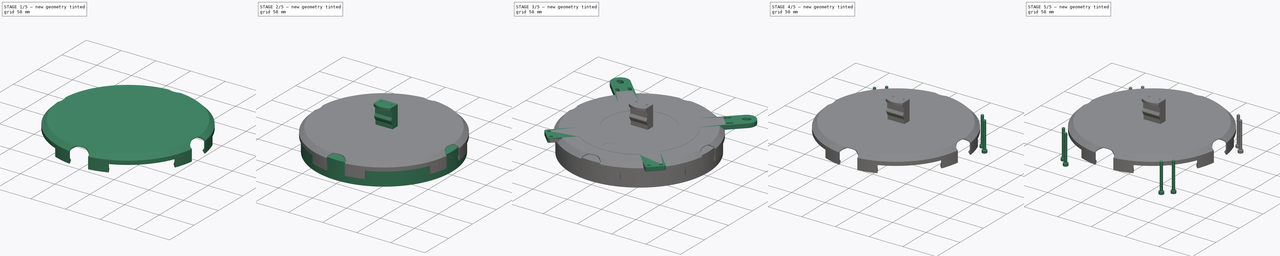
[diagram: build sequence overview — one tinted view per stage of 5, left to right]
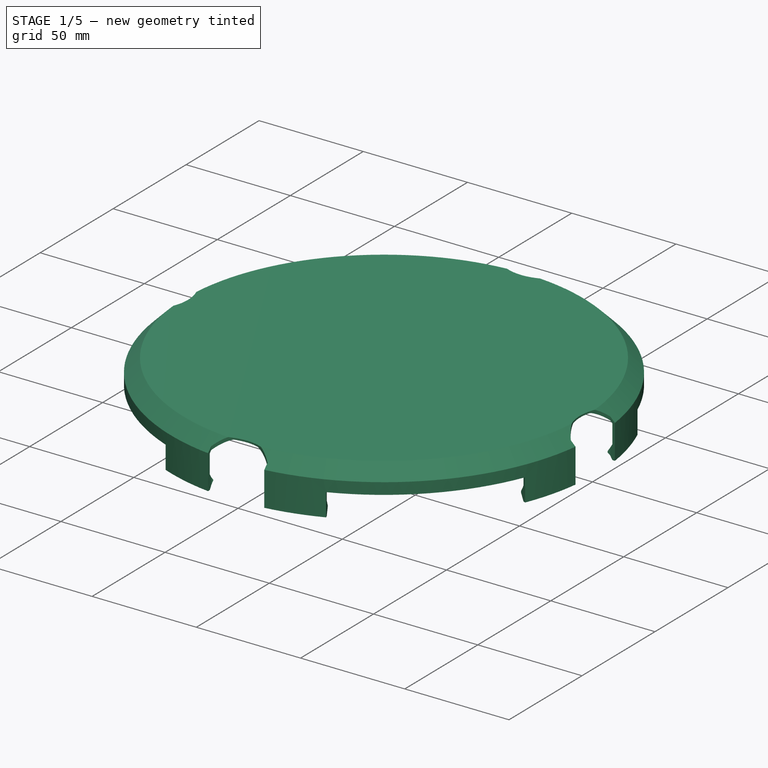
[diagram: stage 1 of 5 — iso view after this stage's code; geometry added in this stage tinted green]
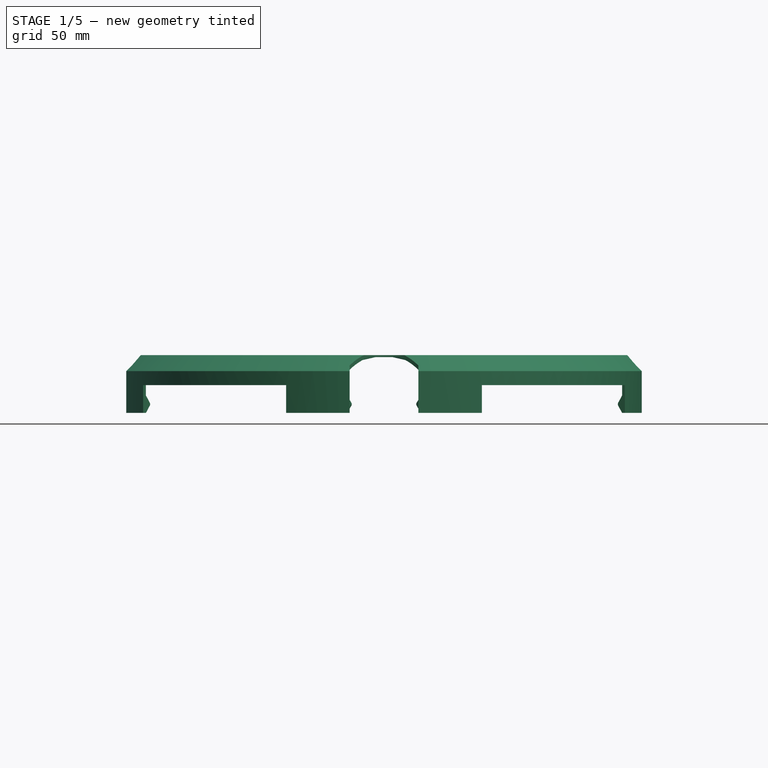
[diagram: stage 1 of 5 — front view after this stage's code; geometry added in this stage tinted green]
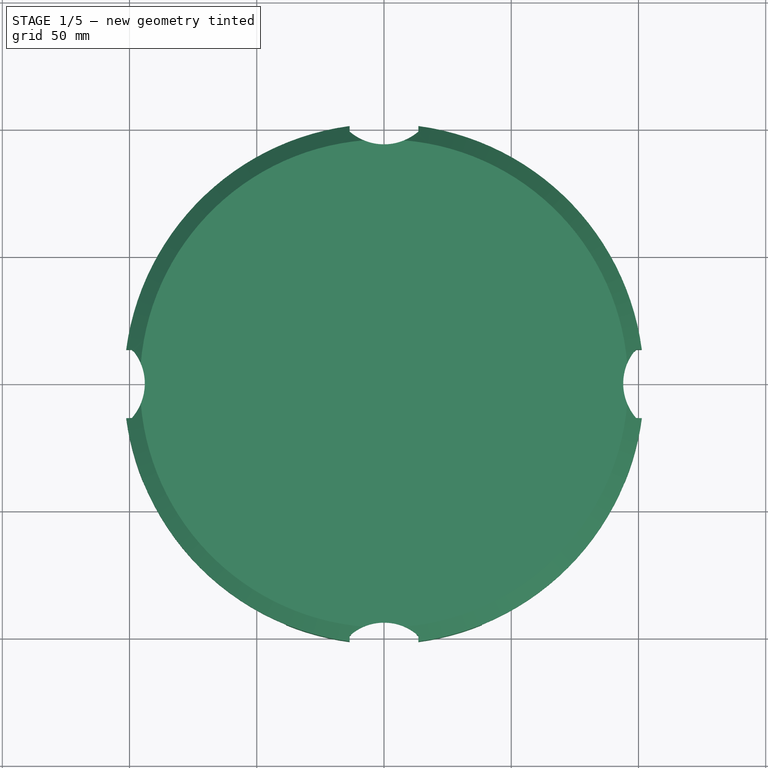
[diagram: stage 1 of 5 — top view after this stage's code; geometry added in this stage tinted green]
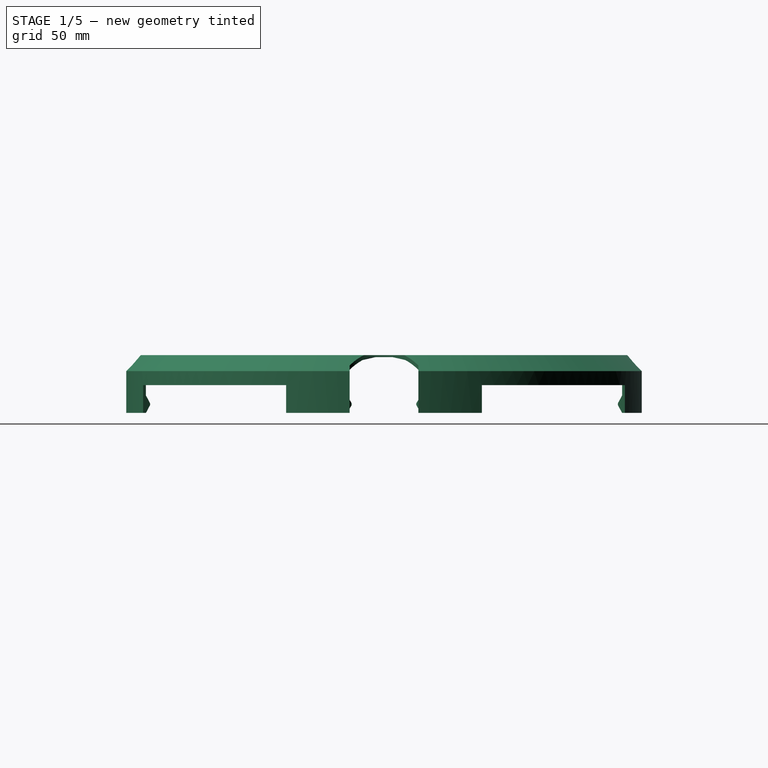
[diagram: stage 1 of 5 — right view after this stage's code; geometry added in this stage tinted green]
FCSTD DOCUMENT  (FreeCAD 0.21RUnknown)
Label: PrimaryMirrorCell
License: All rights reserved
LicenseURL: http://en.wikipedia.org/wiki/All_rights_reserved
objects: PartDesign::CoordinateSystem×31, Sketcher::SketchObject×16, App::Link×9, Part::FeaturePython×8, PartDesign::Pocket×6, PartDesign::Body×5, App::DocumentObjectGroup×4, PartDesign::Revolution×3, PartDesign::Pad×3, PartDesign::Plane×1, PartDesign::Fillet×1, PartDesign::Hole×1, App::FeaturePython×1, App::Part×1, PartDesign::Chamfer×1, PartDesign::PolarPattern×1
note: 92 computed .brp shape members not serialized (recipe doc carries the construction recipe); baked Part::Feature solids carry a one-line shape summary decoded from their .brp
EXTERNAL_REF file=Common.FCStd obj=Spreadsheet

FEATURE [PartDesign::Body] Body022  label="MirrorClip"
  Group = -> [Sketch042,Pad022,Sketch043,Pocket007,Local_CS086,Local_CS087,Local_CS088,Sketch150,Sketch207,Sketch287,Hole056,Chamfer]
  Origin = -> Origin034
  Placement = pos=(72.832,72.832,-31) rot=(0,0,-1;0.785398rad)
  Tip = -> Chamfer
  expr: .Placement.Base.x = (<<Common>>#<<Parameters>>.pri_mdia / 2 + <<Common>>#<<Parameters>>.pri_mpad_z) / sqrt(2)
  expr: .Placement.Base.y = (<<Common>>#<<Parameters>>.pri_mdia / 2 + <<Common>>#<<Parameters>>.pri_mpad_z) / sqrt(2)
  expr: .Placement.Base.z = <<Common>>#<<Parameters>>.datum_uppercell + <<Common>>#<<Parameters>>.pri_uthick
FEATURE [App::DocumentObjectGroup] Parts  label="Primary"
  Group = -> [Body002,Body,Body014,Body022]
FEATURE [Sketcher::SketchObject] Sketch288
  FullyConstrained = true
  MapMode = 5
  Placement = pos=(0,0,0) rot=(1,0,0;1.5708rad)
  Support = -> [XZ_Plane036]
  expr: Constraints[21] = <<Common>>#<<Parameters>>.pri_mdia / 2
  sketch-geometry (14):
    g0: LineSegment StartX=0 StartY=5.8 StartZ=0 EndX=95.8971 EndY=5.8 EndZ=0
    g1: LineSegment StartX=95.8971 StartY=5.8 StartZ=0 EndX=102.2 EndY=-0.502944 EndZ=0
    g2: LineSegment StartX=102.2 StartY=-0.502944 StartZ=0 EndX=102.2 EndY=-16.9392 EndZ=0
    g3: LineSegment StartX=102.2 StartY=-16.9392 StartZ=0 EndX=101 EndY=-16.9392 EndZ=0
    g4: LineSegment StartX=101 StartY=-16.9392 StartZ=0 EndX=99.3608 EndY=-14.1 EndZ=0
    g5: LineSegment StartX=99.3608 StartY=-12.9 StartZ=0 EndX=101 EndY=-10.0608 EndZ=0
    g6: LineSegment StartX=101 StartY=-10.0608 StartZ=0 EndX=101 EndY=-1 EndZ=0
    g7: LineSegment StartX=101 StartY=-1 StartZ=0 EndX=95 EndY=5 EndZ=0
    g8: LineSegment StartX=95 StartY=5 StartZ=0 EndX=0 EndY=5 EndZ=0
    g9: LineSegment StartX=0 StartY=5 StartZ=0 EndX=0 EndY=5.8 EndZ=0
    g10: GeomPoint X=100 Y=0 Z=0
    g11: LineSegment StartX=95 StartY=5 StartZ=0 EndX=95.8485 EndY=5.84853 EndZ=0
    g12: ArcOfCircle CenterX=100.4 CenterY=-13.5 CenterZ=0 NormalX=0 NormalY=0 NormalZ=1 AngleXU=0 Radius=1.2 StartAngle=2.61799 EndAngle=3.66519
    g13: LineSegment StartX=100.4 StartY=-13.5 StartZ=0 EndX=99.2 EndY=-13.5 EndZ=0
  constraints (40):
    c: PointOnObject(g0,g-2)
    c: Horizontal(g0)
    c: Coincident(g1,g0)
    c: Coincident(g2,g1)
    c: Vertical(g2)
    c: Coincident(g3,g2)
    c: Coincident(g4,g3)
    c: Coincident(g6,g5)
    c: Vertical(g6)
    c: Coincident(g7,g6)
    c: Coincident(g8,g7)
    c: Horizontal(g8)
    c: Coincident(g9,g8)
    c: Coincident(g9,g0)
    c: Vertical(g9)
    c: DistanceY(g-1,g8) = 5
    c: DistanceY(g9,g9) = 0.8
    c: Parallel(g7,g1)
    c: Angle(g-1,g1) = 2.35619
    c: PointOnObject(g10,g7)
    c: PointOnObject(g10,g-1)
    c: DistanceX(g10) = 100
    c: DistanceX(g10,g6) = 1
    c: DistanceX(g6,g1) = 1.2
    c: Coincident(g11,g7)
    c: PointOnObject(g11,g1)
    c: Perpendicular(g1,g11)
    c: Distance(g11) = 1.2
    c: Angle(g6,g5) = 2.61799
    c: DistanceX(g3,g3) = 1.2
    c: Horizontal(g3)
    c: Angle(g3,g4) = 2.0944
    c: Radius(g12) = 1.2
    c: Tangent(g12,g5) = 1.5708
    c: Tangent(g12,g4) = 1.5708
    c: Coincident(g13,g12)
    c: PointOnObject(g13,g12)
    c: Horizontal(g13)
    c: DistanceX(g13,g10) = 0.8
    c: DistanceY(g12,g10) = 13.5
FEATURE [PartDesign::Revolution] Revolution004
  Angle = 360
  Axis = (1e-16,1e-16,1)
  Base = (0,0,0)
  Placement = pos=(0,0,0) rot=(1,0,0;1.5708rad)
  Profile = -> Sketch288
  ReferenceAxis = -> Z_Axis036
  Reversed = true
FEATURE [Sketcher::SketchObject] Sketch289
  FullyConstrained = true
  MapMode = 5
  Support = -> [XY_Plane036]
  expr: Constraints[14] = <<Common>>#<<Parameters>>.pri_fwidth + 2
  expr: Constraints[1] = <<Common>>#<<Parameters>>.pri_mdia
  expr: Constraints[20] = <<Common>>#<<Parameters>>.clipover + 1
  sketch-geometry (23):
    g0: Circle CenterX=0 CenterY=0 CenterZ=0 NormalX=0 NormalY=0 NormalZ=1 AngleXU=0 Radius=100
    g1: LineSegment StartX=-13.5 StartY=99.0846 StartZ=0 EndX=-13.5 EndY=-99.0846 EndZ=0
    g2: LineSegment StartX=13.5 StartY=99.0846 StartZ=0 EndX=13.5 EndY=-99.0846 EndZ=0
    g3: LineSegment StartX=99.0846 StartY=13.5 StartZ=0 EndX=-99.0846 EndY=13.5 EndZ=0
    g4: LineSegment StartX=99.0846 StartY=-13.5 StartZ=0 EndX=-99.0846 EndY=-13.5 EndZ=0
    g5: LineSegment StartX=-13.5 StartY=94 StartZ=0 EndX=13.5 EndY=94 EndZ=0
    g6: GeomPoint X=0 Y=100 Z=0
    g7: ArcOfCircle CenterX=0 CenterY=114.464 CenterZ=0 NormalX=0 NormalY=0 NormalZ=1 AngleXU=0 Radius=20.4642 StartAngle=3.99198 EndAngle=5.43279
    g8: LineSegment StartX=-13.5 StartY=99.0846 StartZ=0 EndX=-13.5 EndY=114.464 EndZ=0
    g9: LineSegment StartX=13.5 StartY=99.0846 StartZ=0 EndX=13.5 EndY=114.464 EndZ=0
    g10: LineSegment StartX=13.5 StartY=114.464 StartZ=0 EndX=-13.5 EndY=114.464 EndZ=0
    g11: ArcOfCircle CenterX=114.464 CenterY=1.8e-15 CenterZ=0 NormalX=0 NormalY=0 NormalZ=1 AngleXU=0 Radius=20.4642 StartAngle=2.42119 EndAngle=3.862
    g12: ArcOfCircle CenterX=-114.464 CenterY=3.7e-15 CenterZ=0 NormalX=0 NormalY=0 NormalZ=1 AngleXU=0 Radius=20.4642 StartAngle=5.56278 EndAngle=7.00359
    g13: ArcOfCircle CenterX=-8.6e-15 CenterY=-114.464 CenterZ=0 NormalX=0 NormalY=0 NormalZ=1 AngleXU=0 Radius=20.4642 StartAngle=0.850391 EndAngle=2.2912
    g14: LineSegment StartX=-99.0846 StartY=13.5 StartZ=0 EndX=-114.464 EndY=13.5 EndZ=0
    g15: LineSegment StartX=-114.464 StartY=13.5 StartZ=0 EndX=-114.464 EndY=-13.5 EndZ=0
    g16: LineSegment StartX=-114.464 StartY=-13.5 StartZ=0 EndX=-99.0846 EndY=-13.5 EndZ=0
    g17: LineSegment StartX=99.0846 StartY=13.5 StartZ=0 EndX=114.464 EndY=13.5 EndZ=0
    g18: LineSegment StartX=114.464 StartY=13.5 StartZ=0 EndX=114.464 EndY=-13.5 EndZ=0
    g19: LineSegment StartX=114.464 StartY=-13.5 StartZ=0 EndX=99.0846 EndY=-13.5 EndZ=0
    g20: LineSegment StartX=-13.5 StartY=-99.0846 StartZ=0 EndX=-13.5 EndY=-114.464 EndZ=0
    g21: LineSegment StartX=-13.5 StartY=-114.464 StartZ=0 EndX=13.5 EndY=-114.464 EndZ=0
    g22: LineSegment StartX=13.5 StartY=-114.464 StartZ=0 EndX=13.5 EndY=-99.0846 EndZ=0
  constraints (67):
    c: Coincident(g0,g-1)
    c: Diameter(g0) = 200
    c: Vertical(g1)
    c: Vertical(g2)
    c: Horizontal(g3)
    c: Horizontal(g4)
    c: Symmetric(g1,g2,g-2)
    c: PointOnObject(g1,g0)
    c: PointOnObject(g2,g0)
    c: PointOnObject(g3,g0)
    c: PointOnObject(g4,g0)
    c: Symmetric(g3,g4,g-1)
    c: PointOnObject(g3,g0)
    c: PointOnObject(g1,g0)
    c: DistanceX(g1,g2) = 27
    c: PointOnObject(g5,g1)
    c: PointOnObject(g5,g2)
    c: Horizontal(g5)
    c: PointOnObject(g6,g-2)
    c: PointOnObject(g6,g0)
    c: DistanceY(g5,g6) = 6
    c: PointOnObject(g7,g-2)
    c: Coincident(g7,g1)
    c: PointOnObject(g7,g0)
    c: Tangent(g7,g5)
    c: Coincident(g8,g7)
    c: Vertical(g8)
    c: Coincident(g9,g7)
    c: Vertical(g9)
    c: Coincident(g10,g9)
    c: Coincident(g10,g8)
    c: Horizontal(g10)
    c: Coincident(g11,g3)
    c: Coincident(g11,g4)
    c: Equal(g11,g7)
    c: Coincident(g12,g3)
    c: Coincident(g12,g4)
    c: Coincident(g13,g1)
    c: Coincident(g13,g2)
    c: Equal(g13,g12)
    c: Equal(g12,g7)
    c: Coincident(g14,g12)
    c: Horizontal(g14)
    c: Coincident(g15,g14)
    c: Vertical(g15)
    c: Coincident(g16,g15)
    c: Coincident(g16,g12)
    c: Horizontal(g16)
    c: Coincident(g17,g11)
    c: Horizontal(g17)
    c: Coincident(g18,g17)
    c: Vertical(g18)
    c: Coincident(g19,g18)
    c: Coincident(g19,g11)
    c: Horizontal(g19)
    c: Coincident(g20,g13)
    c: Vertical(g20)
    c: Coincident(g21,g20)
    c: Horizontal(g21)
    c: Coincident(g22,g21)
    c: Coincident(g22,g13)
    c: Vertical(g22)
    c: PointOnObject(g13,g21)
    c: PointOnObject(g11,g18)
    c: PointOnObject(g12,g15)
    c: PointOnObject(g7,g10)
    c: Equal(g18,g10)
FEATURE [PartDesign::Pocket] Pocket
  BaseFeature = -> Revolution004
  Direction = (0,0,-1)
  Length = 5
  Length2 = 5
  Midplane = true
  Placement = pos=(0,0,0) rot=(1,0,0;1.5708rad)
  Profile = -> Sketch289
  ReferenceAxis = -> Sketch289 [N_Axis]
  Type = 1
FEATURE [Sketcher::SketchObject] Sketch290
  AttachmentOffset = pos=(0,0,-6) rot=(0,0,1;0.785398rad)
  ExternalGeometry = -> [Sketch289]
  FullyConstrained = true
  MapMode = 5
  Placement = pos=(0,0,-6) rot=(0,0,1;0.785398rad)
  Support = -> [XY_Plane036]
  expr: Constraints[38] = <<Common>>#<<Parameters>>.pri_mdia / 2
  expr: Constraints[56] = .Constraints.TabWidth
  expr: Constraints[57] = .Constraints.TabWidth
  expr: Constraints[58] = .Constraints.TabWidth
  expr: Constraints[59] = .Constraints.TabWidth
  sketch-geometry (22):
    g0: ArcOfCircle CenterX=0 CenterY=0 CenterZ=0 NormalX=0 NormalY=0 NormalZ=1 AngleXU=0 Radius=110 StartAngle=2.74226 EndAngle=3.54092
    g1: ArcOfCircle CenterX=0 CenterY=0 CenterZ=0 NormalX=0 NormalY=0 NormalZ=1 AngleXU=0 Radius=110 StartAngle=1.17147 EndAngle=1.97013
    g2: ArcOfCircle CenterX=0 CenterY=0 CenterZ=0 NormalX=0 NormalY=0 NormalZ=1 AngleXU=0 Radius=110 StartAngle=5.88386 EndAngle=6.68251
    g3: ArcOfCircle CenterX=0 CenterY=0 CenterZ=0 NormalX=0 NormalY=0 NormalZ=1 AngleXU=0 Radius=110 StartAngle=4.31306 EndAngle=5.11172
    g4: LineSegment StartX=-101.345 StartY=42.768 StartZ=0 EndX=-82.919 EndY=34.992 EndZ=0
    g5: LineSegment StartX=-82.919 StartY=34.992 StartZ=0 EndX=-34.992 EndY=82.919 EndZ=0
    g6: LineSegment StartX=-34.992 StartY=82.919 StartZ=0 EndX=-42.768 EndY=101.345 EndZ=0
    g7: LineSegment StartX=42.768 StartY=101.345 StartZ=0 EndX=34.992 EndY=82.919 EndZ=0
    g8: LineSegment StartX=34.992 StartY=82.919 StartZ=0 EndX=82.919 EndY=34.992 EndZ=0
    g9: LineSegment StartX=82.919 StartY=34.992 StartZ=0 EndX=101.345 EndY=42.768 EndZ=0
    g10: LineSegment StartX=101.345 StartY=-42.768 StartZ=0 EndX=82.919 EndY=-34.992 EndZ=0
    g11: LineSegment StartX=82.919 StartY=-34.992 StartZ=0 EndX=34.992 EndY=-82.919 EndZ=0
    g12: LineSegment StartX=34.992 StartY=-82.919 StartZ=0 EndX=42.768 EndY=-101.345 EndZ=0
    g13: LineSegment StartX=-42.768 StartY=-101.345 StartZ=0 EndX=-34.992 EndY=-82.919 EndZ=0
    g14: LineSegment StartX=-34.992 StartY=-82.919 StartZ=0 EndX=-82.919 EndY=-34.992 EndZ=0
    g15: LineSegment StartX=-82.919 StartY=-34.992 StartZ=0 EndX=-101.345 EndY=-42.768 EndZ=0
    g16: GeomPoint X=38.88 Y=92.1322 Z=0
    g17: GeomPoint X=92.1322 Y=38.88 Z=0
    g18: Circle CenterX=0 CenterY=0 CenterZ=0 NormalX=0 NormalY=0 NormalZ=1 AngleXU=0 Radius=100
    g19: GeomPoint X=-38.88 Y=92.1322 Z=0
    g20: GeomPoint X=-92.1322 Y=-38.88 Z=0
    g21: GeomPoint X=38.88 Y=-92.1322 Z=0
  constraints (60):
    c: Coincident(g0,g-1)
    c: Coincident(g1,g0)
    c: Coincident(g2,g0)
    c: Coincident(g3,g0)
    c: Coincident(g4,g0)
    c: Coincident(g5,g4)
    c: Coincident(g6,g5)
    c: Coincident(g6,g1)
    c: Coincident(g7,g1)
    c: Coincident(g8,g7)
    c: Coincident(g9,g8)
    c: Coincident(g9,g2)
    c: Coincident(g10,g2)
    c: Coincident(g11,g10)
    c: Coincident(g12,g11)
    c: Coincident(g12,g3)
    c: Coincident(g13,g3)
    c: Coincident(g14,g13)
    c: Coincident(g15,g14)
    c: Coincident(g15,g0)
    c: Equal(g3,g0)
    c: Equal(g0,g1)
    c: Equal(g1,g2)
    c: PointOnObject(g0,g6)
    c: PointOnObject(g0,g15)
    c: PointOnObject(g0,g9)
    c: PointOnObject(g0,g12)
    c: Equal(g14,g5)
    c: Equal(g5,g8)
    c: Equal(g8,g11)
    c: Equal(g6,g4)
    c: Equal(g9,g7)
    c: Equal(g13,g15)
    c: Equal(g12,g10)
    c: Equal(g13,g10)
    c: Equal(g10,g7)
    c: Equal(g4,g7)
    c: PointOnObject(g17,g9)
    c: Distance(g17,g0) = 100
    c: Coincident(g18,g0)
    c: PointOnObject(g17,g18)
    c: PointOnObject(g0,g13)
    c: PointOnObject(g0,g7)
    c: PointOnObject(g0,g10)
    c: PointOnObject(g0,g4)
    c: PointOnObject(g16,g7)
    c: PointOnObject(g16,g18)
    c: Distance(g16,g1) = 10
    c: Distance(g7,g16) = 10
    c: Distance(g16,g-8) = 25  'TabWidth'
    c: PointOnObject(g19,g6)
    c: PointOnObject(g19,g18)
    c: PointOnObject(g20,g15)
    c: PointOnObject(g21,g12)
    c: PointOnObject(g20,g18)
    c: PointOnObject(g21,g18)
    c: Distance(g-3,g17) = 25
    c: Distance(g-4,g19) = 25
    c: Distance(g20,g-5) = 25
    c: Distance(g21,g-6) = 25
FEATURE [PartDesign::Pocket] Pocket037
  BaseFeature = -> Pocket
  Direction = (0,0,-1)
  Length = 5
  Length2 = 5
  Placement = pos=(0,0,0) rot=(1,0,0;1.5708rad)
  Profile = -> Sketch290
  ReferenceAxis = -> Sketch290 [N_Axis]
  Type = 1
FEATURE [Sketcher::SketchObject] Sketch291
  AttachmentOffset = pos=(0,0,0) rot=(0,1,0;0.785398rad)
  FullyConstrained = true
  MapMode = 5
  Placement = pos=(0,0,0) rot=(0.862856,0.357407,0.357407;1.71777rad)
  Support = -> [XZ_Plane036]
  expr: Constraints[4] = <<Common>>#<<Parameters>>.pri_mdia / 2 + 0.6
  sketch-geometry (3):
    g0: LineSegment StartX=15 StartY=5 StartZ=0 EndX=95.6 EndY=5 EndZ=0
    g1: LineSegment StartX=15 StartY=5 StartZ=0 EndX=100.6 EndY=0 EndZ=0
    g2: LineSegment StartX=100.6 StartY=0 StartZ=0 EndX=95.6 EndY=5 EndZ=0
  constraints (9):
    c: Horizontal(g0)
    c: Coincident(g1,g0)
    c: PointOnObject(g1,g-1)
    c: DistanceY(g0) = 5
    c: DistanceX(g1) = 100.6
    c: Coincident(g2,g1)
    c: Coincident(g0,g2)
    c: Angle(g2,g-1) = 0.785398
    c: DistanceX(g0) = 15
FEATURE [PartDesign::Pad] Pad
  BaseFeature = -> Pocket037
  Direction = (0.707107,-0.707107,-1e-16)
  Length = 1.2
  Length2 = 10
  Midplane = true
  Placement = pos=(0,0,0) rot=(1,0,0;1.5708rad)
  Profile = -> Sketch291
  ReferenceAxis = -> Sketch291 [N_Axis]
  Type = 0
FEATURE [PartDesign::PolarPattern] PolarPattern
  Angle = 360
  Axis = -> Z_Axis036
  BaseFeature = -> Pad
  Occurrences = 12
  Originals = -> [Pad]
  Placement = pos=(0,0,0) rot=(1,0,0;1.5708rad)
FEATURE [PartDesign::Body] Body023  label="PrimaryMirrorCover"
  Group = -> [Sketch288,Revolution004,Sketch289,Pocket,Sketch290,Pocket037,Sketch291,Pad,PolarPattern]
  Origin = -> Origin036
  Placement = pos=(0,0,0) rot=(0,0,1;0.785398rad)
  Tip = -> PolarPattern
FEATURE [App::DocumentObjectGroup] Group  label="Extras"
  Group = -> [Body023]

RESOLVED EXTERNAL PARTS (link-assembly join: the EXTERNAL_REF files above that resolve inside this repo's crawl, each included once):
---- part Common.FCStd = doc fcstd_f532bfd99702 (72826 chars; too large to inline — full recipe in that document) ----
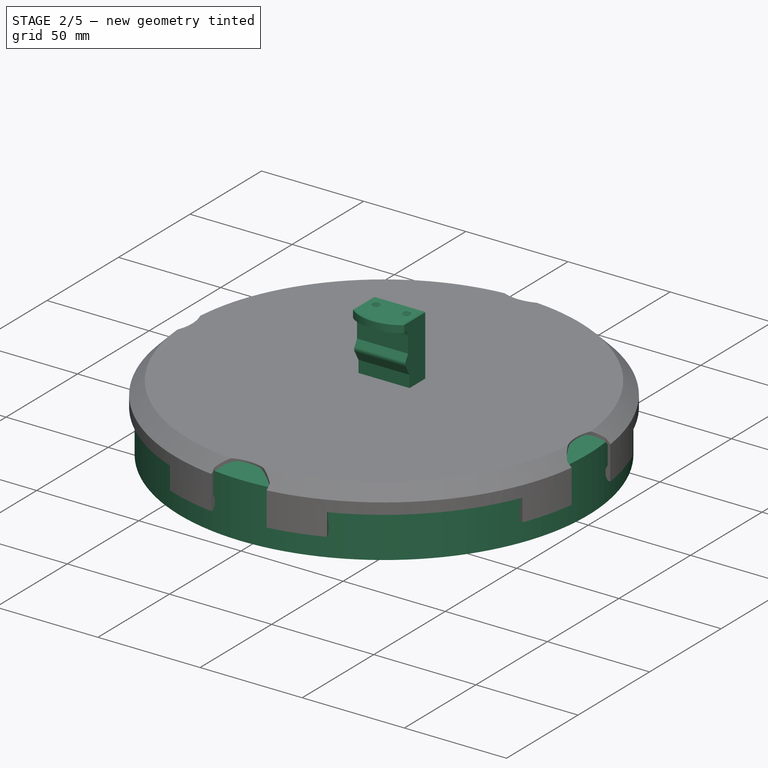
[diagram: stage 2 of 5 — iso view after this stage's code; geometry added in this stage tinted green]
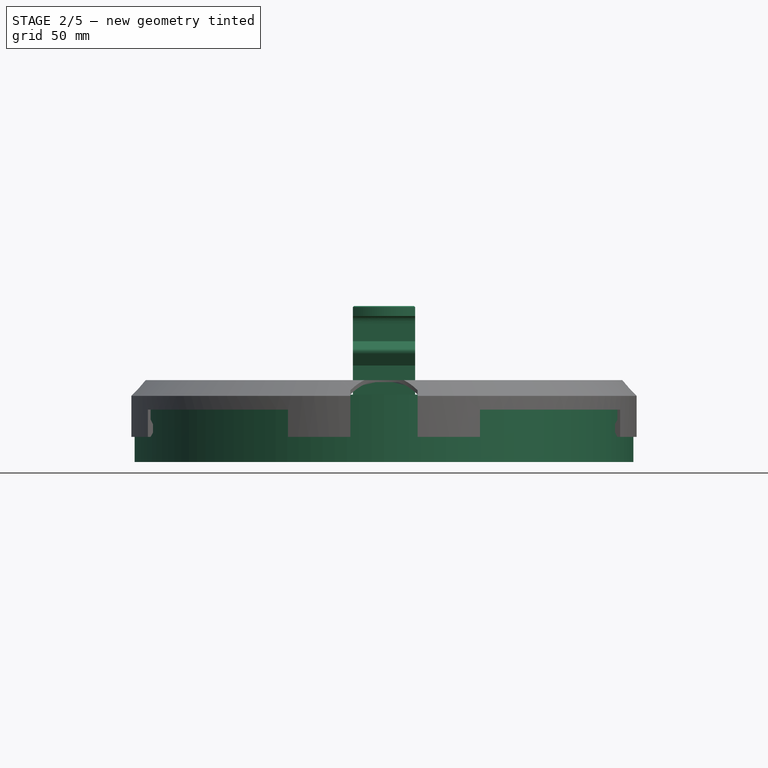
[diagram: stage 2 of 5 — front view after this stage's code; geometry added in this stage tinted green]
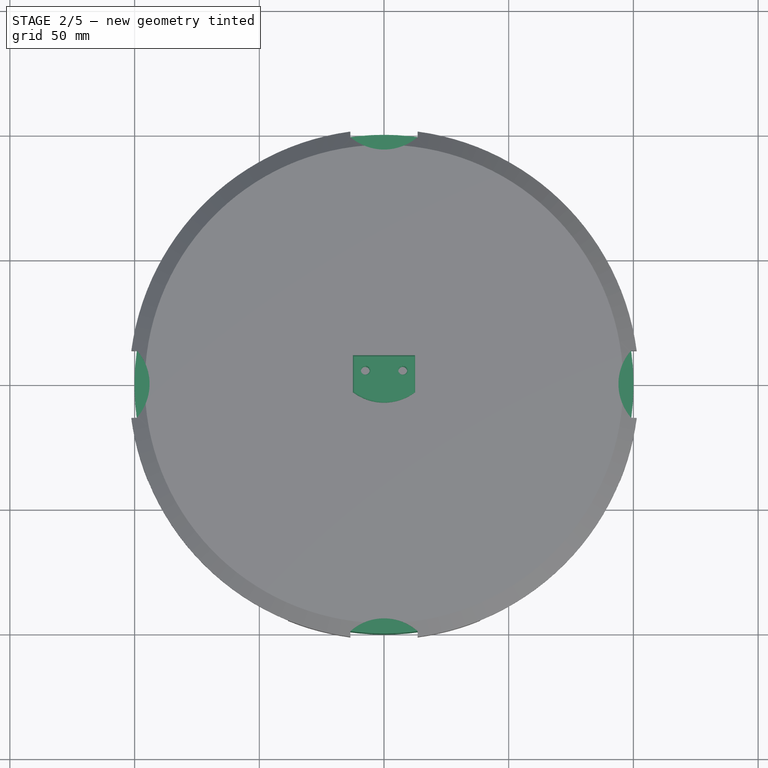
[diagram: stage 2 of 5 — top view after this stage's code; geometry added in this stage tinted green]
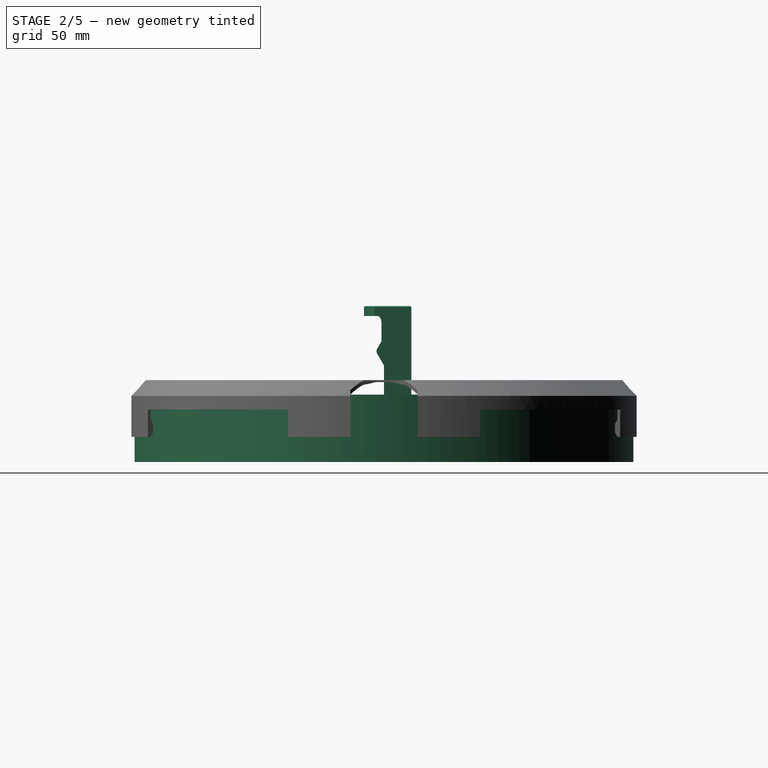
[diagram: stage 2 of 5 — right view after this stage's code; geometry added in this stage tinted green]
FEATURE [PartDesign::CoordinateSystem] Local_CS005  label="LCS_UpperCell_Mirror"
  AttacherType = Attacher::AttachEngine3D
  AttachmentOffset = pos=(0,0,4) rot=(0,0,1;0rad)
  MapMode = 11
  Placement = pos=(0,0,10) rot=(0,0,1;1.5708rad)
  Support = -> [Pad021]
  expr: .AttachmentOffset.Base.z = <<Common>>#<<Parameters>>.pri_mpad_r
FEATURE [PartDesign::CoordinateSystem] Local_CS012  label="LCS_UpperCell_Base"
  AttacherType = Attacher::AttachEngine3D
  AttachmentOffset = pos=(0,0,0) rot=(0,0,-1;1.5708rad)
  MapMode = 11
  Support = -> [Pad021]
FEATURE [Sketcher::SketchObject] Sketch042  label="MirrorClip_Profile"
  FullyConstrained = true
  MapMode = 5
  Placement = pos=(0,0,0) rot=(0.57735,0.57735,0.57735;2.0944rad)
  Support = -> [YZ_Plane034]
  expr: Constraints[16] = <<Common>>#<<Parameters>>.clipover + <<Common>>#<<Parameters>>.pri_mpad_z
  expr: Constraints[17] = <<Common>>#<<Parameters>>.clipthick
  expr: Constraints[18] = <<Common>>#<<Parameters>>.pri_mthick - <<Common>>#<<Parameters>>.zbracepos
  expr: Constraints[19] = <<Common>>#<<Parameters>>.clipwidth + 1
  expr: Constraints[29] = -<<Common>>#<<Parameters>>.pri_mpad_z
  expr: Constraints[41] = -<<Common>>#<<Parameters>>.pri_mpad_z + 0.5
  expr: Constraints[42] = <<Common>>#<<Parameters>>.pri_mpad_z
  expr: Constraints[6] = -<<Common>>#<<Parameters>>.datum_uppercell - <<Common>>#<<Parameters>>.pri_uthick + <<Common>>#<<Parameters>>.clipthick + 0.5
  sketch-geometry (18):
    g0: LineSegment StartX=0 StartY=0 StartZ=0 EndX=11 EndY=0 EndZ=0
    g1: LineSegment StartX=11 StartY=0 StartZ=0 EndX=11 EndY=35.5 EndZ=0
    g2: LineSegment StartX=11 StartY=35.5 StartZ=0 EndX=-8 EndY=35.5 EndZ=0
    g3: LineSegment StartX=-8 StartY=35.5 StartZ=0 EndX=-8 EndY=31.5 EndZ=0
    g4: LineSegment StartX=-8 StartY=31.5 StartZ=0 EndX=-2.5 EndY=31.5 EndZ=0
    g5: LineSegment StartX=-1 StartY=28.5 StartZ=0 EndX=-1 EndY=21.3851 EndZ=0
    g6: LineSegment StartX=-1 StartY=21.3851 StartZ=0 EndX=-2.73205 EndY=18.3851 EndZ=0
    g7: LineSegment StartX=-2.73205 StartY=16.3851 StartZ=0 EndX=0 EndY=11.6531 EndZ=0
    g8: LineSegment StartX=0 StartY=11.6531 StartZ=0 EndX=0 EndY=0 EndZ=0
    g9: LineSegment StartX=-3 StartY=17.3851 StartZ=0 EndX=11 EndY=17.3851 EndZ=0
    g10: ArcOfCircle CenterX=-1 CenterY=17.3851 CenterZ=0 NormalX=0 NormalY=0 NormalZ=1 AngleXU=0 Radius=2 StartAngle=2.61799 EndAngle=3.66519
    g11: GeomPoint X=-3 Y=17.3851 Z=0
    g12: GeomPoint X=-1 Y=31.5 Z=0
    g13: ArcOfEllipse CenterX=-2.5 CenterY=28.5 CenterZ=0 NormalX=0 NormalY=0 NormalZ=1 MajorRadius=3 MinorRadius=1.5 AngleXU=1.5708 StartAngle=4.71239 EndAngle=6.28319
    g14: LineSegment StartX=-2.5 StartY=31.5 StartZ=0 EndX=-2.5 EndY=25.5 EndZ=0
    g15: LineSegment StartX=-4 StartY=28.5 StartZ=0 EndX=-1 EndY=28.5 EndZ=0
    g16: GeomPoint X=-2.5 Y=31.0981 Z=0
    g17: GeomPoint X=-2.5 Y=25.9019 Z=0
  constraints (40):
    c: Coincident(g0,g1)
    c: Coincident(g1,g2)
    c: Horizontal(g0)
    c: Horizontal(g2)
    c: Vertical(g1)
    c: Coincident(g0,g-1)
    c: DistanceY(g1,g1) = 35.5
    c: Coincident(g3,g2)
    c: Vertical(g3)
    c: Coincident(g4,g3)
    c: Horizontal(g4)
    c: Vertical(g5)
    c: Coincident(g6,g5)
    c: Coincident(g8,g7)
    c: Coincident(g8,g0)
    c: Vertical(g8)
    c: DistanceX(g2,g-1) = 8
    c: DistanceY(g3,g3) = 4
    c: DistanceY(g11,g12) = 14.1149
    c: DistanceX(g0,g0) = 11
    c: Coincident(g9,g11)
    c: PointOnObject(g9,g1)
    c: Tangent(g6,g10) = -1.5708
    c: Tangent(g7,g10) = -1.5708
    c: Radius(g10) = 2
    c: PointOnObject(g10,g9)
    c: PointOnObject(g9,g10)
    c: PointOnObject(g12,g4)
    c: PointOnObject(g12,g5)
    c: DistanceX(g9) = -3
    c: Perpendicular(g1,g9)
    c: Angle(g7,g9) = 1.0472
    c: Angle(g9,g6) = 1.0472
    c: DistanceX(g5) = -1
    c: InternalAlignment(g14-g17 -> g13) x4
    c: Horizontal(g15)
    c: Tangent(g13,g4) = 1.5708
    c: Tangent(g13,g5) = 1.5708
    c: DistanceX(g13) = -2.5
    c: DistanceY(g5,g4) = 3
FEATURE [PartDesign::Pad] Pad022  label="MirrorClip_Profile_Pad"
  Direction = (1,-2e-16,3e-16)
  Length = 25
  Length2 = 100
  Midplane = true
  Placement = pos=(0,0,0) rot=(0.57735,0.57735,0.57735;2.0944rad)
  Profile = -> Sketch042
  Type = 0
  expr: Length = <<Common>>#<<Parameters>>.pri_fwidth
FEATURE [PartDesign::Pocket] Pocket007  label="MirrorClip_RimCut"
  BaseFeature = -> Pad022
  Direction = (0,0,-1)
  Length = 5
  Length2 = 100
  Placement = pos=(0,0,0) rot=(0.57735,0.57735,0.57735;2.0944rad)
  Profile = -> Sketch043
  Reversed = true
  Type = 1
FEATURE [PartDesign::Body] Body  label="UpperCell"
  Group = -> [Sketch,Sketch011,Sketch012,Sketch017,DatumPlane004,Sketch024,Local_CS005,Local_CS006,Local_CS007,Local_CS008,Local_CS009,Local_CS010,Local_CS011,Local_CS012,Pad021,Local_CS080,Local_CS081,Local_CS082,Local_CS083,Pocket013,Pocket014,Local_CS114,Local_CS115,Local_CS116,Local_CS117,Local_CS118,Local_CS119,Local_CS120,Local_CS121,Fillet,Pocket036]
  Origin = -> Origin001
  Placement = pos=(0,0,-37) rot=(0,0,1;0rad)
  Tip = -> Pocket036
  expr: .Placement.Base.z = <<Common>>#<<Parameters>>.datum_uppercell
FEATURE [Sketcher::SketchObject] Sketch116  label="PriMirror_Profile"
  FullyConstrained = true
  MapMode = 5
  Placement = pos=(0,0,0) rot=(0.57735,0.57735,0.57735;2.0944rad)
  Support = -> [YZ_Plane]
  expr: Constraints[12] = <<Common>>#<<Parameters>>.pri_mdia / 2
  expr: Constraints[13] = <<Common>>#<<Parameters>>.pri_mthick
  expr: Constraints[14] = <<Common>>#<<Parameters>>.sys_flen
  sketch-geometry (6):
    g0: LineSegment StartX=0 StartY=-27 StartZ=0 EndX=100 EndY=-27 EndZ=0
    g1: LineSegment StartX=100 StartY=-27 StartZ=0 EndX=100 EndY=0 EndZ=0
    g2: LineSegment StartX=1.2212e-12 StartY=-2.5 StartZ=0 EndX=0 EndY=-27 EndZ=0
    g3: ArcOfParabola CenterX=1.2212e-12 CenterY=-2.5 CenterZ=0 NormalX=0 NormalY=0 NormalZ=1 Focal=1000 AngleXU=1.5708 StartAngle=-100 EndAngle=0
    g4: GeomPoint X=1.2212e-12 Y=997.5 Z=0
    g5: LineSegment StartX=1.2212e-12 StartY=-2.5 StartZ=0 EndX=1.2212e-12 EndY=997.5 EndZ=0
  constraints (16):
    c: PointOnObject(g0,g-2)
    c: Horizontal(g0)
    c: Coincident(g1,g0)
    c: PointOnObject(g1,g-1)
    c: Vertical(g1)
    c: PointOnObject(g2,g-2)
    c: Coincident(g2,g0)
    c: InternalAlignment(g4,g3)
    c: InternalAlignment(g5,g3)
    c: PointOnObject(g4,g-2)
    c: Coincident(g3,g1)
    c: Coincident(g2,g3)
    c: DistanceX(g0,g0) = 100
    c: DistanceY(g1,g1) = 27
    c: DistanceY(g5,g5) = 1000
    c: Vertical(g5)
FEATURE [PartDesign::Revolution] Revolution003  label="PrimaryMirror_Revolution"
  Angle = 360
  Axis = (-3e-16,3e-16,1)
  Base = (0,0,0)
  Placement = pos=(0,0,0) rot=(0.57735,0.57735,0.57735;2.0944rad)
  Profile = -> Sketch116
  ReferenceAxis = -> Z_Axis
  Reversed = true
FEATURE [PartDesign::Body] Body014  label="PrimaryMirror"
  Group = -> [Local_CS,Local_CS001,Local_CS039,Sketch116,Revolution003]
  Origin = -> Origin
  Tip = -> Revolution003
FEATURE [Sketcher::SketchObject] Sketch150  label="Mirrorclip_NutHole_Sketch"
  AttachmentOffset = pos=(0,0,24) rot=(0,0,1;0rad)
  ExternalGeometry = -> [Sketch043,Pocket007]
  FullyConstrained = false
  MapMode = 5
  Placement = pos=(0,0,24) rot=(0,0,1;0rad)
  Support = -> [XY_Plane034]
  sketch-geometry (14):
    g0: LineSegment StartX=-5.76329 StartY=8.51768 StartZ=0 EndX=-9.80474 EndY=8.51768 EndZ=0
    g1: LineSegment StartX=-9.80474 StartY=8.51768 StartZ=0 EndX=-11.8255 EndY=5.01768 EndZ=0
    g2: LineSegment StartX=-11.8255 StartY=5.01768 StartZ=0 EndX=-9.80474 EndY=1.51768 EndZ=0
    g3: LineSegment StartX=-9.80474 StartY=1.51768 StartZ=0 EndX=-5.76329 EndY=1.51768 EndZ=0
    g4: LineSegment StartX=-5.76329 StartY=1.51768 StartZ=0 EndX=-3.74256 EndY=5.01768 EndZ=0
    g5: LineSegment StartX=-3.74256 StartY=5.01768 StartZ=0 EndX=-5.76329 EndY=8.51768 EndZ=0
    g6: Circle CenterX=-7.78401 CenterY=5.01768 CenterZ=0 NormalX=0 NormalY=0 NormalZ=1 AngleXU=0 Radius=4.04145
    g7: LineSegment StartX=-2.02073 StartY=9.13987 StartZ=0 EndX=2.02073 EndY=9.13987 EndZ=0
    g8: LineSegment StartX=2.02073 StartY=9.13987 StartZ=0 EndX=4.04145 EndY=12.6399 EndZ=0
    g9: LineSegment StartX=4.04145 StartY=12.6399 StartZ=0 EndX=2.02073 EndY=16.1399 EndZ=0
    g10: LineSegment StartX=2.02073 StartY=16.1399 StartZ=0 EndX=-2.02073 EndY=16.1399 EndZ=0
    g11: LineSegment StartX=-2.02073 StartY=16.1399 StartZ=0 EndX=-4.04145 EndY=12.6399 EndZ=0
    g12: LineSegment StartX=-4.04145 StartY=12.6399 StartZ=0 EndX=-2.02073 EndY=9.13987 EndZ=0
    g13: Circle CenterX=-1.93e-14 CenterY=12.6399 CenterZ=0 NormalX=0 NormalY=0 NormalZ=1 AngleXU=0 Radius=4.04145
  constraints (32):
    c: Coincident(g0,g1)
    c: Coincident(g1,g2)
    c: Coincident(g2,g3)
    c: Coincident(g3,g4)
    c: Coincident(g4,g5)
    c: Coincident(g5,g0)
    c: Equal(g0, g1-g5) x5
    c: PointOnObject(g0,g6)
    c: PointOnObject(g1,g6)
    c: PointOnObject(g2,g6)
    c: PointOnObject(g3,g6)
    c: PointOnObject(g4,g6)
    c: PointOnObject(g5,g6)
    c: Coincident(g7,g8)
    c: Coincident(g8,g9)
    c: Coincident(g9,g10)
    c: Coincident(g10,g11)
    c: Coincident(g11,g12)
    c: Coincident(g12,g7)
    c: Equal(g7, g8-g12) x5
    c: PointOnObject(g7,g13)
    c: PointOnObject(g8,g13)
    c: PointOnObject(g9,g13)
    c: PointOnObject(g10,g13)
    c: PointOnObject(g11,g13)
    c: PointOnObject(g12,g13)
    c: Coincident(g13,g-4)
    c: Equal(g13,g6)
    c: DistanceY(g0,g-5) = 2.48232
    c: Horizontal(g10)
    c: DistanceY(g12,g11) = 7
    c: Horizontal(g0)
FEATURE [Sketcher::SketchObject] Sketch207  label="MirrorClip_SideCut_Sketch"
  ExternalGeometry = -> [Pocket007]
  FullyConstrained = true
  MapMode = 5
  Placement = pos=(0,0,0) rot=(1,0,0;1.5708rad)
  Support = -> [XZ_Plane034]
  expr: Constraints[15] = <<Common>>#<<Parameters>>.pri_fwidth
  sketch-geometry (9):
    g0: LineSegment StartX=-13.5 StartY=25.7321 StartZ=0 EndX=-12.5 EndY=24 EndZ=0
    g1: LineSegment StartX=-12.5 StartY=24 StartZ=0 EndX=-12.5 EndY=-1 EndZ=0
    g2: LineSegment StartX=-12.5 StartY=-1 StartZ=0 EndX=-13.5 EndY=-1 EndZ=0
    g3: LineSegment StartX=-13.5 StartY=-1 StartZ=0 EndX=-13.5 EndY=25.7321 EndZ=0
    g4: LineSegment StartX=13.5 StartY=25.7321 StartZ=0 EndX=12.5 EndY=24 EndZ=0
    g5: LineSegment StartX=12.5 StartY=24 StartZ=0 EndX=12.5 EndY=-1 EndZ=0
    g6: LineSegment StartX=12.5 StartY=-1 StartZ=0 EndX=13.5 EndY=-1 EndZ=0
    g7: LineSegment StartX=13.5 StartY=-1 StartZ=0 EndX=13.5 EndY=25.7321 EndZ=0
    g8: GeomPoint X=12.5 Y=24 Z=0
  constraints (23):
    c: Coincident(g0,g1)
    c: Coincident(g1,g2)
    c: Coincident(g2,g3)
    c: Coincident(g3,g0)
    c: Horizontal(g2)
    c: Vertical(g1)
    c: Vertical(g3)
    c: Coincident(g4,g5)
    c: Coincident(g5,g6)
    c: Coincident(g6,g7)
    c: Coincident(g7,g4)
    c: Horizontal(g6)
    c: Vertical(g7)
    c: Symmetric(g1,g5,g-2)
    c: Symmetric(g0,g4,g-2)
    c: DistanceX(g0,g4) = 25
    c: Symmetric(g4,g0,g-2)
    c: Angle(g5,g4) = 2.61799
    c: DistanceY(g5) = -1
    c: DistanceX(g-3,g6) = 1
    c: PointOnObject(g8,g-4)
    c: PointOnObject(g8,g4)
    c: DistanceY(g8) = 24
FEATURE [Sketcher::SketchObject] Sketch287  label="MirrorClip_MountHole_Sketch"
  FullyConstrained = true
  MapMode = 5
  Placement = pos=(0,0,0) rot=(0,1,0;3.14159rad)
  Support = -> [XY_Plane034]
  expr: Constraints[1] = <<Common>>#<<Parameters>>.pri_fwidth - <<Common>>#<<Parameters>>.clipbolt * 2.5
  expr: Constraints[2] = <<Common>>#<<Parameters>>.clipwidth / 2
  expr: Constraints[3] = <<Common>>#<<Parameters>>.clipbolt
  sketch-geometry (2):
    g0: Circle CenterX=-7.5 CenterY=5 CenterZ=0 NormalX=0 NormalY=0 NormalZ=1 AngleXU=0 Radius=2
    g1: Circle CenterX=7.5 CenterY=5 CenterZ=0 NormalX=0 NormalY=0 NormalZ=1 AngleXU=0 Radius=2
  constraints (5):
    c: Symmetric(g0,g1,g-2)
    c: DistanceX(g0,g1) = 15
    c: DistanceY(g0) = 5
    c: Diameter(g0) = 4
    c: Equal(g0,g1)
FEATURE [PartDesign::CoordinateSystem] Local_CS086  label="LCS_MirrorClip_Base"
  AttacherType = Attacher::AttachEngine3D
  AttachmentOffset = pos=(0,0,0) rot=(0,0,1;1.5708rad)
  MapMode = 45
  Placement = pos=(-9e-15,5,0) rot=(0,0,1;3.14159rad)
  Support = -> [Sketch287]
FEATURE [PartDesign::CoordinateSystem] Local_CS088  label="LCS_MirrorClip_Mount_2"
  AttacherType = Attacher::AttachEngine3D
  MapMode = 11
  Placement = pos=(-7.5,5,0) rot=(0.707107,0.707107,0;3.14159rad)
  Support = -> [Sketch287]
FEATURE [PartDesign::CoordinateSystem] Local_CS087  label="LCS_MirrorClip_Mount_1"
  AttacherType = Attacher::AttachEngine3D
  MapMode = 11
  Placement = pos=(7.5,5,0) rot=(0.707107,0.707107,0;3.14159rad)
  Support = -> [Sketch287]
FEATURE [PartDesign::Hole] Hole056  label="MirrorClip_MountHole"
  BaseFeature = -> Pocket007
  CustomThreadClearance = 0.25
  Depth = 95.7371
  DepthType = 1
  Diameter = 3.55
  DrillForDepth = false
  DrillPoint = 1
  DrillPointAngle = 118
  HoleCutCountersinkAngle = 90
  HoleCutCustomValues = false
  HoleCutDepth = 0
  HoleCutDiameter = 6.1
  HoleCutType = 0
  ModelThread = true
  Placement = pos=(0,0,0) rot=(0.57735,0.57735,0.57735;2.0944rad)
  Profile = -> Sketch287
  Tapered = false
  TaperedAngle = 90
  ThreadClass = 0
  ThreadDepth = 95.7371
  ThreadDepthType = 0
  ThreadDirection = 0
  ThreadFit = 0
  ThreadSize = 11
  ThreadType = 1
  Threaded = true
  UseCustomThreadClearance = true
FEATURE [PartDesign::CoordinateSystem] LCS_PrimaryCell_Base
  AttachedBy = Origin
  AttacherType = Attacher::AttachEngine3D
  Placement = pos=(0,0,-37) rot=(0,0,1;0rad)
  SolverId = Asm4EE
  expr: Placement = UpperCell.Placement * Local_CS012.Placement
FEATURE [PartDesign::CoordinateSystem] LCS_SecondaryMirrorFace
  AttachedBy = Origin
  AttacherType = Attacher::AttachEngine3D
  Placement = pos=(0,0,835) rot=(0,0,1;0rad)
  SolverId = Asm4EE
  expr: Placement = PrimaryMirror.Placement * Local_CS039.Placement
FEATURE [App::Part] Assembly
  AssemblyType = Part::Link
  DrawingName = PrimaryMirrorCell.FCStd
  Group = -> [LCS_Origin,Constraints,Variables,Configurations,PrimaryMirror,UpperCell,LowerPad_A,LowerPad_FS,LowerPad_FP,MirrorClip_AP,MirrorClip_AS,MirrorClip_FP,MirrorClip_FS,Screw,Screw001,Screw002,Screw003,Screw004,Screw005,Screw006,Screw007,LCS_PrimaryCell_Base,LCS_SecondaryMirrorFace]
  Origin = -> Origin035
  PartID = PrimaryMirrorCell
  Type = Assembly
FEATURE [PartDesign::Chamfer] Chamfer  label="MirrorClip_Chamfer"
  Angle = 45
  Base = -> Hole056 [Edge13,Edge32,Edge21,Edge33,Edge31]
  BaseFeature = -> Hole056
  ChamferType = 0
  FlipDirection = false
  Placement = pos=(0,0,0) rot=(0.57735,0.57735,0.57735;2.0944rad)
  Size = 0.4
  Size2 = 1
  SupportTransform = false
  UseAllEdges = false
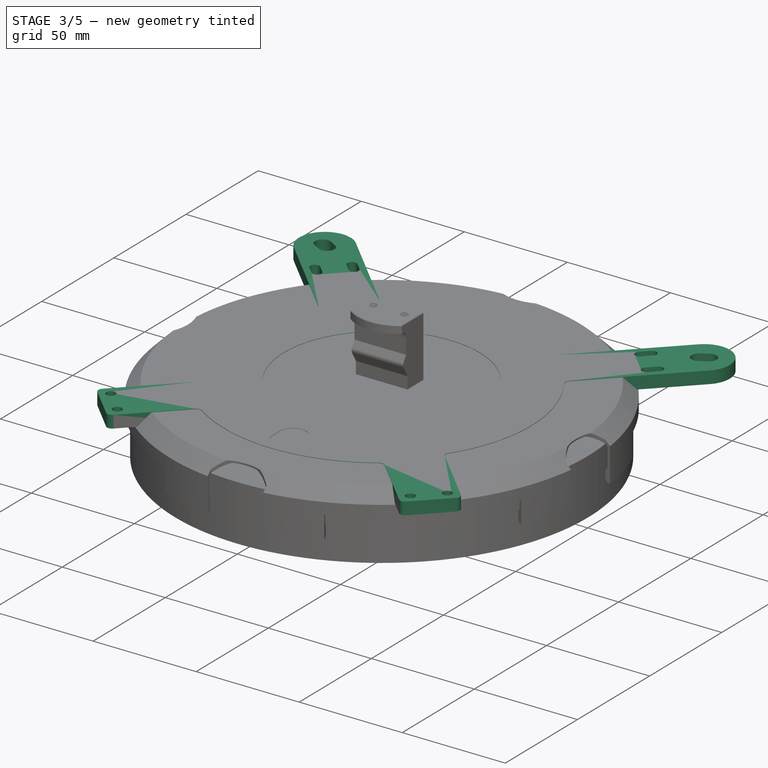
[diagram: stage 3 of 5 — iso view after this stage's code; geometry added in this stage tinted green]
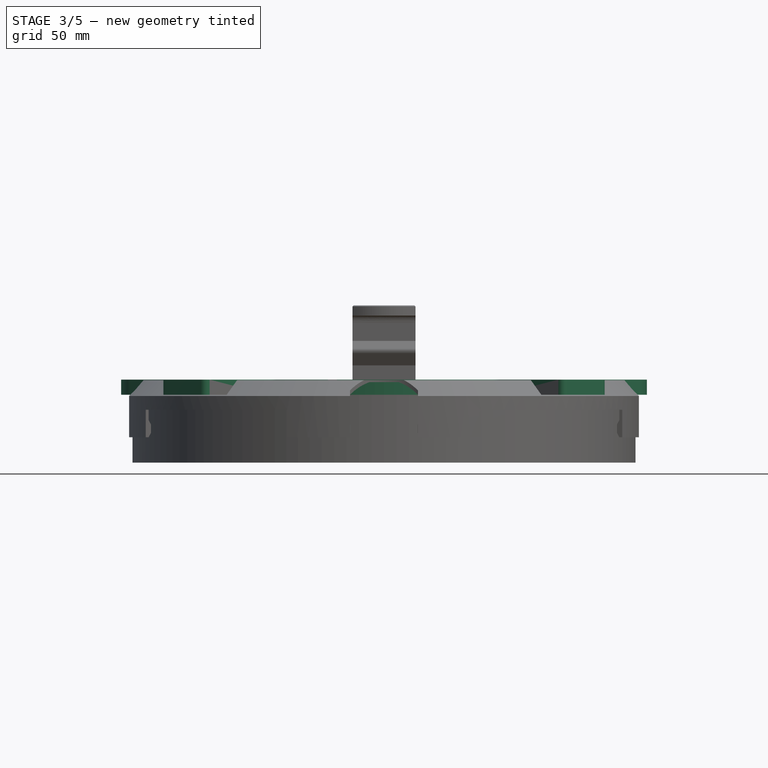
[diagram: stage 3 of 5 — front view after this stage's code; geometry added in this stage tinted green]
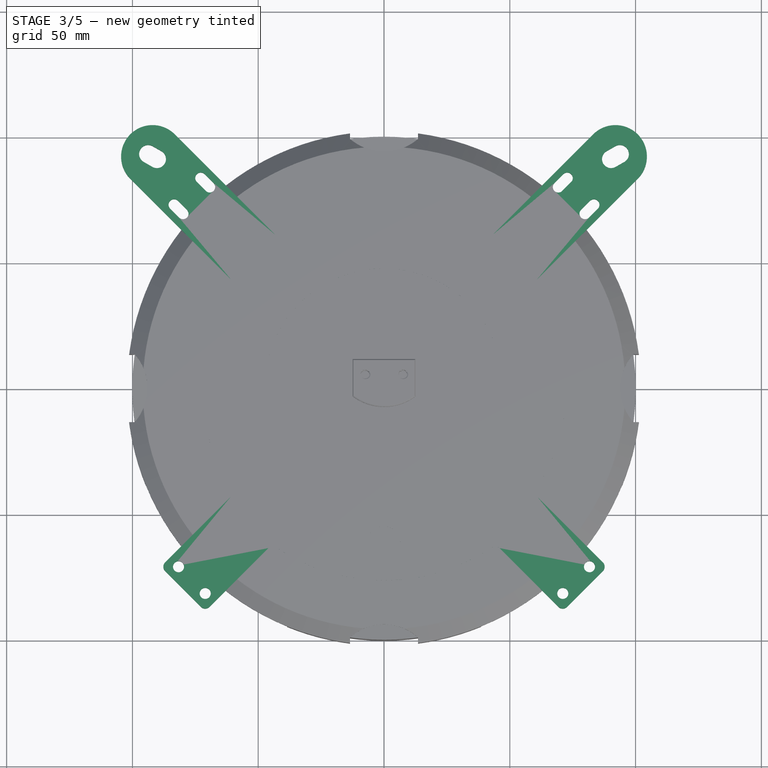
[diagram: stage 3 of 5 — top view after this stage's code; geometry added in this stage tinted green]
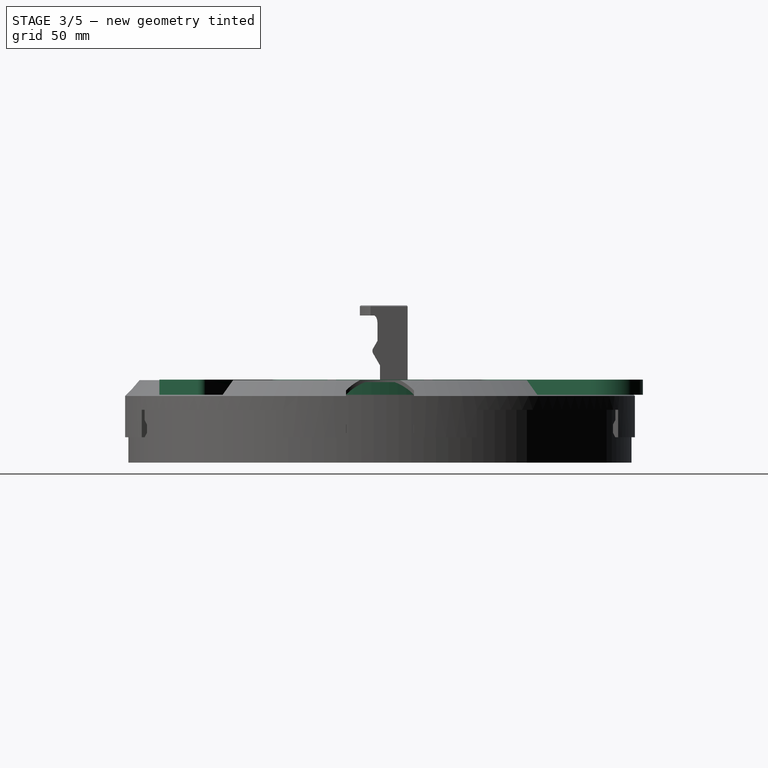
[diagram: stage 3 of 5 — right view after this stage's code; geometry added in this stage tinted green]
FEATURE [PartDesign::CoordinateSystem] Local_CS  label="LCS_MirrorFace"
  AttacherType = Attacher::AttachEngine3D
  MapMode = 5
  Support = -> [XY_Plane]
FEATURE [PartDesign::CoordinateSystem] Local_CS001  label="LCS_MirrorBase"
  AttacherType = Attacher::AttachEngine3D
  AttachmentOffset = pos=(0,0,-27) rot=(0,0,1;0rad)
  MapMode = 5
  Placement = pos=(0,0,-27) rot=(0,0,1;0rad)
  Support = -> [XY_Plane]
  expr: .AttachmentOffset.Base.z = -<<Common>>#<<Parameters>>.pri_mthick
FEATURE [PartDesign::CoordinateSystem] Local_CS002  label="LCS_PadBase"
  AttacherType = Attacher::AttachEngine3D
  MapMode = 11
  Placement = pos=(0,0,-1) rot=(0,0,1;1.5708rad)
  Support = -> [Revolution]
FEATURE [PartDesign::CoordinateSystem] Local_CS004  label="LCS_PadUpper"
  AttacherType = Attacher::AttachEngine3D
  MapMode = 11
  Placement = pos=(0,0,3.8533) rot=(0.707107,-0.707107,0;3.14159rad)
  Support = -> [Revolution]
FEATURE [PartDesign::Body] Body002  label="LowerPad"
  Group = -> [Sketch026,Revolution,Local_CS002,Local_CS004]
  Origin = -> Origin006
  Placement = pos=(0,60,-31) rot=(0,0,1;0rad)
  Tip = -> Revolution
  expr: .Placement.Base.y = <<Common>>#<<Parameters>>.rbracepos
  expr: .Placement.Base.z = <<Common>>#<<Parameters>>.datum_uppercell + <<Common>>#<<Parameters>>.pri_uthick
FEATURE [PartDesign::CoordinateSystem] Local_CS006  label="LCS_UpperCell_Pad_A"
  AttacherType = Attacher::AttachEngine3D
  AttachmentOffset = pos=(0,60,-1) rot=(0,0,1;0rad)
  MapMode = 5
  Placement = pos=(0,60,5) rot=(0,0,1;0rad)
  Support = -> [DatumPlane004]
  expr: .AttachmentOffset.Base.y = <<Common>>#<<Parameters>>.rbracepos
FEATURE [PartDesign::CoordinateSystem] Local_CS007  label="LCS_UpperCell_Pad_FP"
  AttacherType = Attacher::AttachEngine3D
  AttachmentOffset = pos=(51.9615,-30,-1) rot=(0,0,-1;2.0944rad)
  MapMode = 5
  Placement = pos=(51.9615,-30,5) rot=(0,0,-1;2.0944rad)
  Support = -> [DatumPlane004]
  expr: .AttachmentOffset.Base.x = <<Common>>#<<Parameters>>.rbracepos * sin(120 deg)
  expr: .AttachmentOffset.Base.y = <<Common>>#<<Parameters>>.rbracepos * cos(120 deg)
FEATURE [PartDesign::CoordinateSystem] Local_CS008  label="LCS_UpperCell_Pad_FS"
  AttacherType = Attacher::AttachEngine3D
  AttachmentOffset = pos=(-51.9615,-30,-1) rot=(0,0,1;2.0944rad)
  MapMode = 5
  Placement = pos=(-51.9615,-30,5) rot=(0,0,1;2.0944rad)
  Support = -> [DatumPlane004]
  expr: .AttachmentOffset.Base.x = <<Common>>#<<Parameters>>.rbracepos * sin(-120 deg)
  expr: .AttachmentOffset.Base.y = <<Common>>#<<Parameters>>.rbracepos * cos(-120 deg)
FEATURE [PartDesign::CoordinateSystem] Local_CS009  label="LCS_UpperCell_CollBoltF"
  AttacherType = Attacher::AttachEngine3D
  AttachmentOffset = pos=(0,-64,-2) rot=(0,0,1;0rad)
  MapMode = 5
  Placement = pos=(0,-64,4) rot=(0,0,1;0rad)
  Support = -> [DatumPlane004]
  expr: .AttachmentOffset.Base.y = -<<Common>>#<<Parameters>>.cpointpos
FEATURE [PartDesign::CoordinateSystem] Local_CS010  label="LCS_UpperCell_CollBolt_AS"
  AttacherType = Attacher::AttachEngine3D
  AttachmentOffset = pos=(-92,92,0) rot=(0,0,1;0rad)
  MapMode = 5
  Placement = pos=(-92,92,6) rot=(0,0,1;0rad)
  Support = -> [DatumPlane004]
  expr: .AttachmentOffset.Base.x = -<<Common>>#<<Parameters>>.collpos_y
  expr: .AttachmentOffset.Base.y = <<Common>>#<<Parameters>>.collpos_y
FEATURE [PartDesign::CoordinateSystem] Local_CS011  label="LCS_UpperCell_CollBolt_AP"
  AttacherType = Attacher::AttachEngine3D
  AttachmentOffset = pos=(92,92,0) rot=(0,0,1;0rad)
  MapMode = 5
  Placement = pos=(92,92,6) rot=(0,0,1;0rad)
  Support = -> [DatumPlane004]
  expr: .AttachmentOffset.Base.x = <<Common>>#<<Parameters>>.collpos_y
  expr: .AttachmentOffset.Base.y = <<Common>>#<<Parameters>>.collpos_y
FEATURE [PartDesign::CoordinateSystem] Local_CS039  label="LCS_SecondaryMirror"
  AttacherType = Attacher::AttachEngine3D
  AttachmentOffset = pos=(0,0,835) rot=(0,0,1;0rad)
  MapMode = 5
  Placement = pos=(0,0,835) rot=(0,0,1;0rad)
  Support = -> [XY_Plane]
  expr: .AttachmentOffset.Base.z = <<Common>>#<<Parameters>>.mirror_distance
FEATURE [PartDesign::Pad] Pad021  label="UpperCell_pad"
  Direction = (0,0,1)
  Length = 6
  Length2 = 100
  Profile = -> Sketch
  Type = 0
  expr: Length = <<Common>>#<<Parameters>>.pri_uthick
FEATURE [Sketcher::SketchObject] Sketch043  label="MirrorClip_RimCut_Sketch"
  ExternalGeometry = -> [Pad022]
  FullyConstrained = true
  MapMode = 5
  Support = -> [XY_Plane034]
  expr: Constraints[1] = <<Common>>#<<Parameters>>.pri_mdia
  expr: Constraints[25] = <<Common>>#<<Parameters>>.pri_fwidth
  expr: Constraints[2] = <<Common>>#<<Parameters>>.pri_mdia / 2 + <<Common>>#<<Parameters>>.pri_mpad_z
  sketch-geometry (9):
    g0: Circle CenterX=0 CenterY=-103 CenterZ=0 NormalX=0 NormalY=0 NormalZ=1 AngleXU=0 Radius=100
    g1: ArcOfCircle CenterX=-1.93e-14 CenterY=12.6399 CenterZ=0 NormalX=0 NormalY=0 NormalZ=1 AngleXU=0 Radius=20.6399 StartAngle=4.06184 EndAngle=5.36294
    g2: LineSegment StartX=-13.5 StartY=-9 StartZ=0 EndX=13.5 EndY=-9 EndZ=0
    g3: LineSegment StartX=-12.5 StartY=-3.78433 StartZ=0 EndX=-13.5 EndY=-3.78433 EndZ=0
    g4: LineSegment StartX=12.5 StartY=-3.78433 StartZ=0 EndX=13.5 EndY=-3.78433 EndZ=0
    g5: LineSegment StartX=13.5 StartY=-3.78433 StartZ=0 EndX=13.5 EndY=-9 EndZ=0
    g6: LineSegment StartX=-13.5 StartY=-3.78433 StartZ=0 EndX=-13.5 EndY=-9 EndZ=0
    g7: GeomPoint X=-12.5 Y=-3.78433 Z=0
    g8: GeomPoint X=12.5 Y=-3.78433 Z=0
  constraints (26):
    c: PointOnObject(g0,g-2)
    c: Diameter(g0) = 200
    c: DistanceY(g0,g-1) = 103
    c: Coincident(g3,g1)
    c: Horizontal(g3)
    c: Coincident(g4,g1)
    c: Coincident(g5,g4)
    c: Coincident(g6,g3)
    c: Coincident(g6,g2)
    c: Coincident(g2,g5)
    c: Horizontal(g4)
    c: Horizontal(g2)
    c: Vertical(g5)
    c: Vertical(g6)
    c: Equal(g4,g3)
    c: DistanceX(g4,g4) = 1
    c: Tangent(g1,g-4)
    c: DistanceY(g2,g-5) = 1
    c: PointOnObject(g7,g0)
    c: PointOnObject(g1,g-5)
    c: PointOnObject(g1,g-3)
    c: PointOnObject(g7,g1)
    c: Equal(g6,g5)
    c: PointOnObject(g8,g1)
    c: PointOnObject(g8,g0)
    c: DistanceX(g7,g8) = 25
FEATURE [PartDesign::CoordinateSystem] Local_CS080  label="LCS_UpperCell_Clip_AS"
  AttacherType = Attacher::AttachEngine3D
  AttachmentOffset = pos=(-76.3675,76.3675,0) rot=(0,0,-1;2.35619rad)
  MapMode = 5
  Placement = pos=(-76.3675,76.3675,6) rot=(0,0,-1;2.35619rad)
  Support = -> [DatumPlane004]
  expr: .AttachmentOffset.Base.x = -(<<Common>>#<<Parameters>>.pri_mdia / 2 + <<Common>>#<<Parameters>>.pri_mpad_z + <<Common>>#<<Parameters>>.clipwidth / 2) / sqrt(2)
  expr: .AttachmentOffset.Base.y = (<<Common>>#<<Parameters>>.pri_mdia / 2 + <<Common>>#<<Parameters>>.pri_mpad_z + <<Common>>#<<Parameters>>.clipwidth / 2) / sqrt(2)
FEATURE [PartDesign::CoordinateSystem] Local_CS081  label="LCS_UpperCell_Clip_AP"
  AttacherType = Attacher::AttachEngine3D
  AttachmentOffset = pos=(76.3675,76.3675,0) rot=(0,0,1;2.35619rad)
  MapMode = 5
  Placement = pos=(76.3675,76.3675,6) rot=(0,0,1;2.35619rad)
  Support = -> [DatumPlane004]
  expr: .AttachmentOffset.Base.x = (<<Common>>#<<Parameters>>.pri_mdia / 2 + <<Common>>#<<Parameters>>.pri_mpad_z + <<Common>>#<<Parameters>>.clipwidth / 2) / sqrt(2)
  expr: .AttachmentOffset.Base.y = (<<Common>>#<<Parameters>>.pri_mdia / 2 + <<Common>>#<<Parameters>>.pri_mpad_z + <<Common>>#<<Parameters>>.clipwidth / 2) / sqrt(2)
FEATURE [PartDesign::CoordinateSystem] Local_CS082  label="LCS_UpperCell_Clip_FP"
  AttacherType = Attacher::AttachEngine3D
  AttachmentOffset = pos=(76.3675,-76.3675,0) rot=(0,0,1;0.785398rad)
  MapMode = 5
  Placement = pos=(76.3675,-76.3675,6) rot=(0,0,1;0.785398rad)
  Support = -> [DatumPlane004]
  expr: .AttachmentOffset.Base.x = (<<Common>>#<<Parameters>>.pri_mdia / 2 + <<Common>>#<<Parameters>>.pri_mpad_z + <<Common>>#<<Parameters>>.clipwidth / 2) / sqrt(2)
  expr: .AttachmentOffset.Base.y = -(<<Common>>#<<Parameters>>.pri_mdia / 2 + <<Common>>#<<Parameters>>.pri_mpad_z + <<Common>>#<<Parameters>>.clipwidth / 2) / sqrt(2)
FEATURE [PartDesign::CoordinateSystem] Local_CS083  label="LCS_UpperCell_Clip_FS"
  AttacherType = Attacher::AttachEngine3D
  AttachmentOffset = pos=(-76.3675,-76.3675,0) rot=(0,0,-1;0.785398rad)
  MapMode = 5
  Placement = pos=(-76.3675,-76.3675,6) rot=(0,0,-1;0.785398rad)
  Support = -> [DatumPlane004]
  expr: .AttachmentOffset.Base.x = -(<<Common>>#<<Parameters>>.pri_mdia / 2 + <<Common>>#<<Parameters>>.pri_mpad_z + <<Common>>#<<Parameters>>.clipwidth / 2) / sqrt(2)
  expr: .AttachmentOffset.Base.y = -(<<Common>>#<<Parameters>>.pri_mdia / 2 + <<Common>>#<<Parameters>>.pri_mpad_z + <<Common>>#<<Parameters>>.clipwidth / 2) / sqrt(2)
FEATURE [PartDesign::Pocket] Pocket013  label="UpperCell_ClipHoles_Cut"
  BaseFeature = -> Pad021
  Direction = (0,0,-1)
  Length = 5
  Length2 = 100
  Profile = -> Sketch017
  Type = 1
FEATURE [PartDesign::Pocket] Pocket014  label="UpperCell_CollHoles_Cut"
  BaseFeature = -> Pocket013
  Direction = (0,0,-1)
  Length = 2
  Length2 = 100
  Profile = -> Sketch012
  Type = 0
FEATURE [PartDesign::CoordinateSystem] Local_CS114  label="LCS_UpperCell_CBolt_FSS"
  AttacherType = Attacher::AttachEngine3D
  AttachmentOffset = pos=(7.5,0,6) rot=(0,0,1;0rad)
  MapMode = 5
  Placement = pos=(-81.6708,-71.0642,0) rot=(0.382683,0.92388,0;3.14159rad)
  Support = -> [Local_CS083]
  expr: .AttachmentOffset.Base.x = (<<Common>>#<<Parameters>>.pri_fwidth - <<Common>>#<<Parameters>>.clipbolt * 2.5) / 2
  expr: .AttachmentOffset.Base.z = <<Common>>#<<Parameters>>.pri_uthick
FEATURE [PartDesign::CoordinateSystem] Local_CS115  label="LCS_UpperCell_CBolt_FSP"
  AttacherType = Attacher::AttachEngine3D
  AttachmentOffset = pos=(-7.5,0,6) rot=(0,0,1;0rad)
  MapMode = 5
  Placement = pos=(-71.0642,-81.6708,0) rot=(0.382683,0.92388,0;3.14159rad)
  Support = -> [Local_CS083]
  expr: .AttachmentOffset.Base.x = -(<<Common>>#<<Parameters>>.pri_fwidth - <<Common>>#<<Parameters>>.clipbolt * 2.5) / 2
  expr: .AttachmentOffset.Base.z = <<Common>>#<<Parameters>>.pri_uthick
FEATURE [PartDesign::CoordinateSystem] Local_CS116  label="LCS_UpperCell_CBolt_FPS"
  AttacherType = Attacher::AttachEngine3D
  AttachmentOffset = pos=(7.5,0,6) rot=(0,0,1;0rad)
  MapMode = 5
  Placement = pos=(71.0642,-81.6708,0) rot=(-0.382683,0.92388,0;3.14159rad)
  Support = -> [Local_CS082]
  expr: .AttachmentOffset.Base.x = (<<Common>>#<<Parameters>>.pri_fwidth - <<Common>>#<<Parameters>>.clipbolt * 2.5) / 2
  expr: .AttachmentOffset.Base.z = <<Common>>#<<Parameters>>.pri_uthick
FEATURE [PartDesign::CoordinateSystem] Local_CS117  label="LCS_UpperCell_CBolt_FPP"
  AttacherType = Attacher::AttachEngine3D
  AttachmentOffset = pos=(-7.5,0,6) rot=(0,0,1;0rad)
  MapMode = 5
  Placement = pos=(81.6708,-71.0642,0) rot=(-0.382683,0.92388,0;3.14159rad)
  Support = -> [Local_CS082]
  expr: .AttachmentOffset.Base.x = -(<<Common>>#<<Parameters>>.pri_fwidth - <<Common>>#<<Parameters>>.clipbolt * 2.5) / 2
  expr: .AttachmentOffset.Base.z = <<Common>>#<<Parameters>>.pri_uthick
FEATURE [PartDesign::CoordinateSystem] Local_CS118  label="LCS_UpperCell_CBolt_ASS"
  AttacherType = Attacher::AttachEngine3D
  AttachmentOffset = pos=(-7.5,0,6) rot=(0,0,1;0rad)
  MapMode = 5
  Placement = pos=(-81.6708,71.0642,0) rot=(0.92388,0.382683,0;3.14159rad)
  Support = -> [Local_CS080]
  expr: .AttachmentOffset.Base.x = -(<<Common>>#<<Parameters>>.pri_fwidth - <<Common>>#<<Parameters>>.clipbolt * 2.5) / 2
  expr: .AttachmentOffset.Base.z = <<Common>>#<<Parameters>>.pri_uthick
FEATURE [PartDesign::CoordinateSystem] Local_CS119  label="LCS_UpperCell_CBolt_ASP"
  AttacherType = Attacher::AttachEngine3D
  AttachmentOffset = pos=(7.5,0,6) rot=(0,0,1;0rad)
  MapMode = 5
  Placement = pos=(-71.0642,81.6708,0) rot=(0.92388,0.382683,0;3.14159rad)
  Support = -> [Local_CS080]
  expr: .AttachmentOffset.Base.x = (<<Common>>#<<Parameters>>.pri_fwidth - <<Common>>#<<Parameters>>.clipbolt * 2.5) / 2
  expr: .AttachmentOffset.Base.z = <<Common>>#<<Parameters>>.pri_uthick
FEATURE [PartDesign::CoordinateSystem] Local_CS120  label="LCS_UpperCell_CBolt_APP"
  AttacherType = Attacher::AttachEngine3D
  AttachmentOffset = pos=(7.5,0,6) rot=(0,0,1;0rad)
  MapMode = 5
  Placement = pos=(81.6708,71.0642,0) rot=(0.92388,-0.382683,0;3.14159rad)
  Support = -> [Local_CS081]
  expr: .AttachmentOffset.Base.x = (<<Common>>#<<Parameters>>.pri_fwidth - <<Common>>#<<Parameters>>.clipbolt * 2.5) / 2
  expr: .AttachmentOffset.Base.z = <<Common>>#<<Parameters>>.pri_uthick
FEATURE [PartDesign::CoordinateSystem] Local_CS121  label="LCS_UpperCell_CBolt_APS"
  AttacherType = Attacher::AttachEngine3D
  AttachmentOffset = pos=(-7.5,0,6) rot=(0,0,1;0rad)
  MapMode = 5
  Placement = pos=(71.0642,81.6708,0) rot=(0.92388,-0.382683,0;3.14159rad)
  Support = -> [Local_CS081]
  expr: .AttachmentOffset.Base.x = -(<<Common>>#<<Parameters>>.pri_fwidth - <<Common>>#<<Parameters>>.clipbolt * 2.5) / 2
  expr: .AttachmentOffset.Base.z = <<Common>>#<<Parameters>>.pri_uthick
FEATURE [PartDesign::Fillet] Fillet  label="UpperCell_Fillet"
  Base = -> Pocket014 [Edge1,Edge2,Edge8,Edge128,Edge136,Edge137,Edge129,Edge106,Edge108,Edge114,Edge113,Edge107,Edge105,Edge104,Edge110,Edge112]
  BaseFeature = -> Pocket014
  Radius = 2.5
  SupportTransform = false
  UseAllEdges = false
  expr: Radius = <<Common>>#<<Parameters>>.pri_fillet
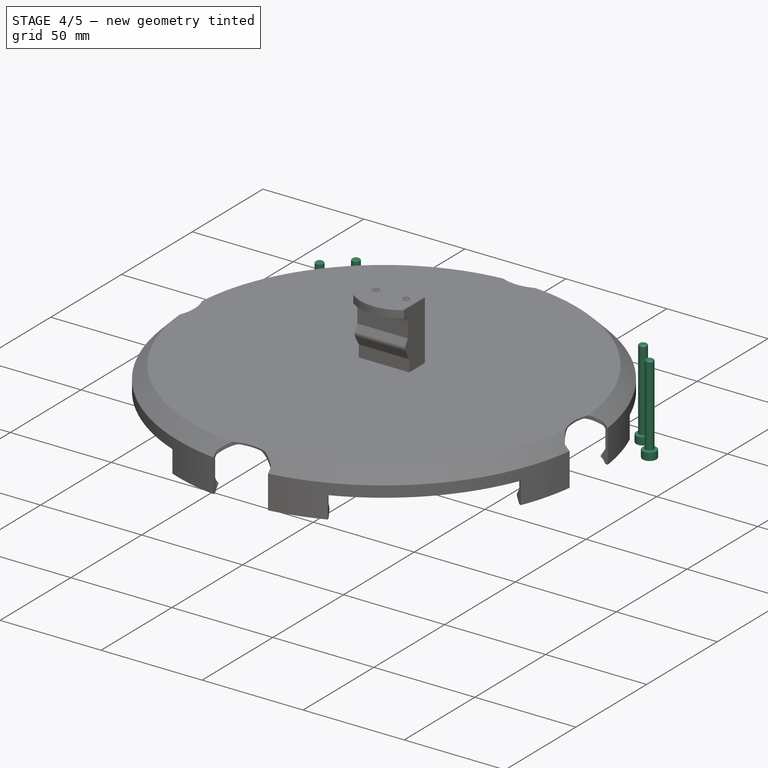
[diagram: stage 4 of 5 — iso view after this stage's code; geometry added in this stage tinted green]
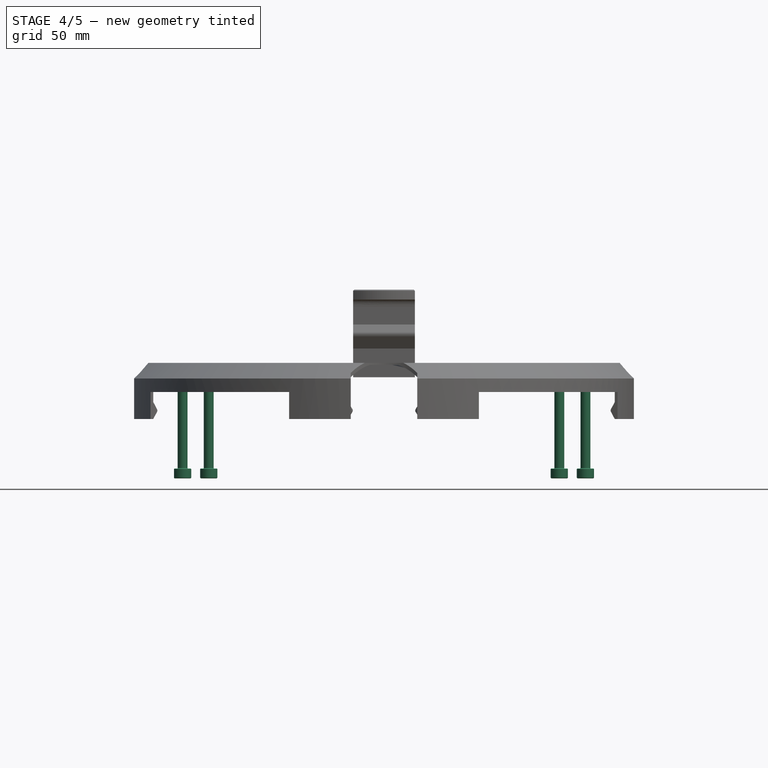
[diagram: stage 4 of 5 — front view after this stage's code; geometry added in this stage tinted green]
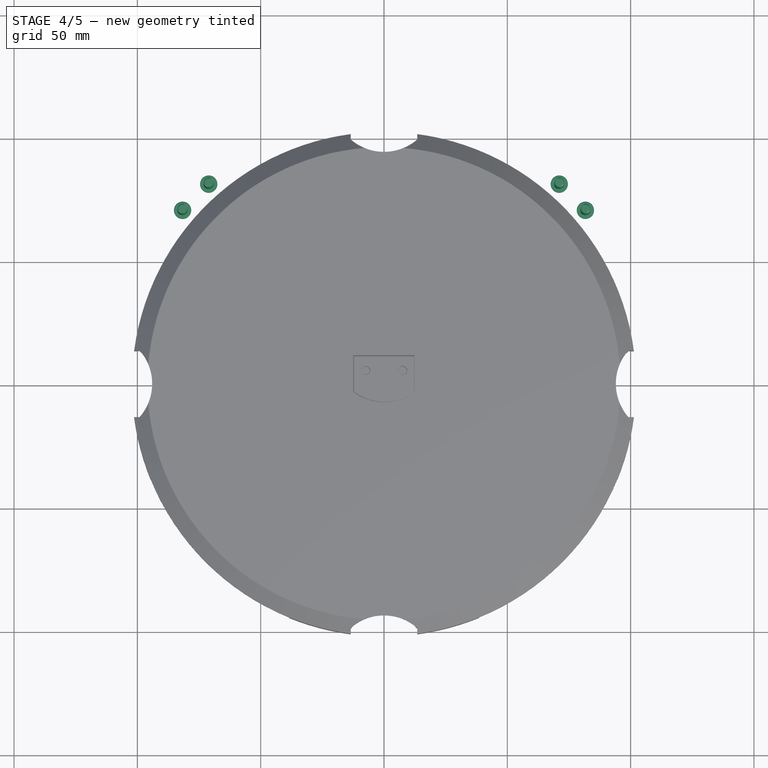
[diagram: stage 4 of 5 — top view after this stage's code; geometry added in this stage tinted green]
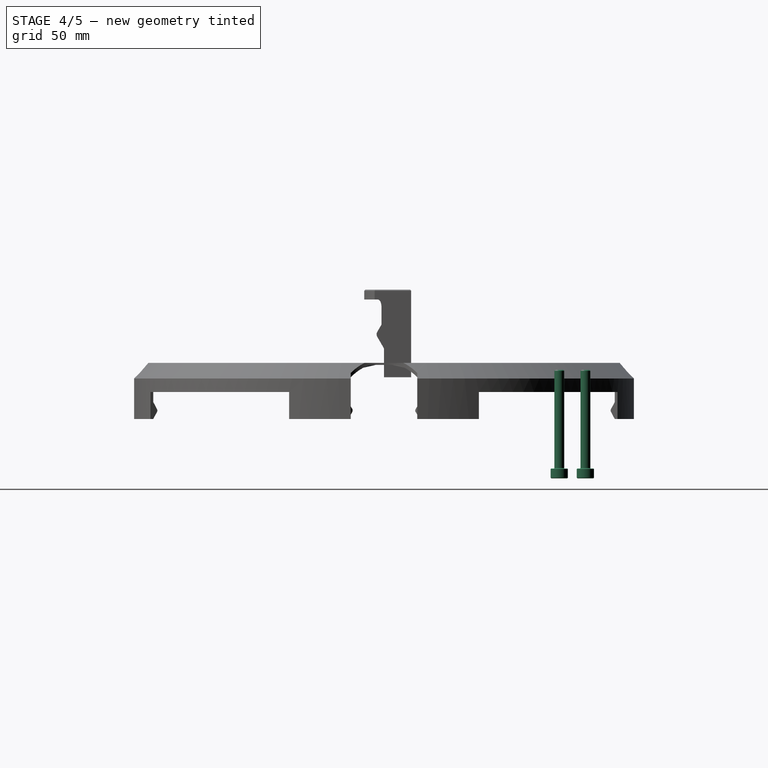
[diagram: stage 4 of 5 — right view after this stage's code; geometry added in this stage tinted green]
FEATURE [PartDesign::Pocket] Pocket036  label="UpperCell_MountHoles"
  BaseFeature = -> Fillet
  Direction = (0,0,-1)
  Length = 1
  Length2 = 100
  Profile = -> Sketch024
  Type = 0
FEATURE [Part::FeaturePython] Screw004  label="M4x40-Screw093"  # Fasteners workbench fastener (typed FeaturePython)
  AttachedBy = Origin
  AttachedTo = UpperCell#Local_CS118
  Placement = pos=(-81.6708,71.0642,-37) rot=(0.92388,0.382683,0;3.14159rad)
  SolverId = Asm4EE
  diameter = 5
  invert = false
  leftHanded = false
  length = 10
  lengthCustom = 40
  matchOuter = false
  offset = 0
  thread = false
  type = 45
  expr: Placement = UpperCell.Placement * Local_CS118.Placement * AttachmentOffset
FEATURE [Part::FeaturePython] Screw005  label="M4x40-Screw094"  # Fasteners workbench fastener (typed FeaturePython)
  AttachedBy = Origin
  AttachedTo = UpperCell#Local_CS119
  Placement = pos=(-71.0642,81.6708,-37) rot=(0.92388,0.382683,0;3.14159rad)
  SolverId = Asm4EE
  diameter = 5
  invert = false
  leftHanded = false
  length = 10
  lengthCustom = 40
  matchOuter = false
  offset = 0
  thread = false
  type = 45
  expr: Placement = UpperCell.Placement * Local_CS119.Placement * AttachmentOffset
FEATURE [Part::FeaturePython] Screw006  label="M4x40-Screw095"  # Fasteners workbench fastener (typed FeaturePython)
  AttachedBy = Origin
  AttachedTo = UpperCell#Local_CS120
  Placement = pos=(81.6708,71.0642,-37) rot=(0.92388,-0.382683,0;3.14159rad)
  SolverId = Asm4EE
  diameter = 5
  invert = false
  leftHanded = false
  length = 10
  lengthCustom = 40
  matchOuter = false
  offset = 0
  thread = false
  type = 45
  expr: Placement = UpperCell.Placement * Local_CS120.Placement * AttachmentOffset
FEATURE [Part::FeaturePython] Screw007  label="M4x40-Screw096"  # Fasteners workbench fastener (typed FeaturePython)
  AttachedBy = Origin
  AttachedTo = UpperCell#Local_CS121
  Placement = pos=(71.0642,81.6708,-37) rot=(0.92388,-0.382683,0;3.14159rad)
  SolverId = Asm4EE
  diameter = 5
  invert = false
  leftHanded = false
  length = 10
  lengthCustom = 40
  matchOuter = false
  offset = 0
  thread = false
  type = 45
  expr: Placement = UpperCell.Placement * Local_CS121.Placement * AttachmentOffset
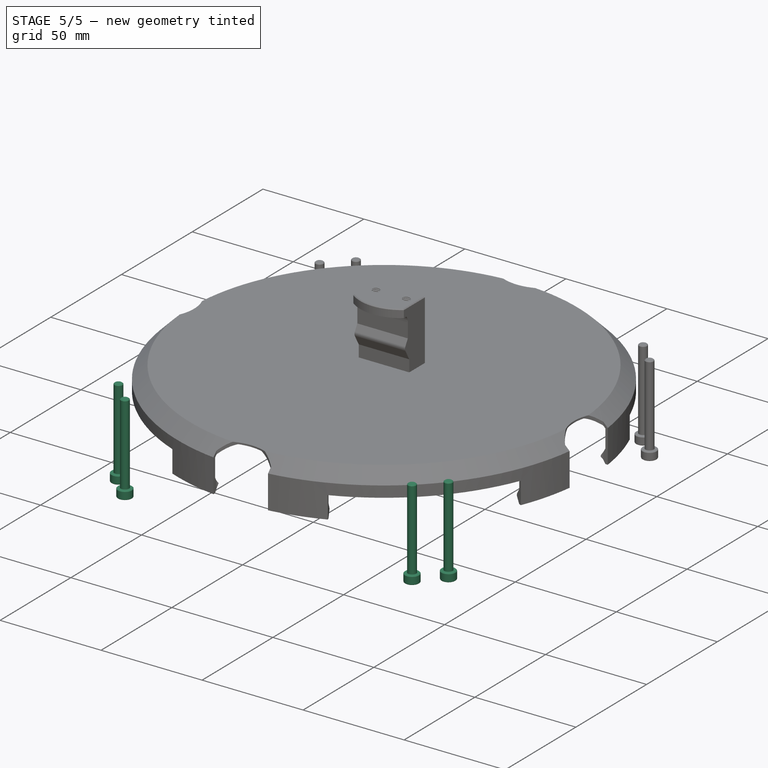
[diagram: stage 5 of 5 — iso view after this stage's code; geometry added in this stage tinted green]
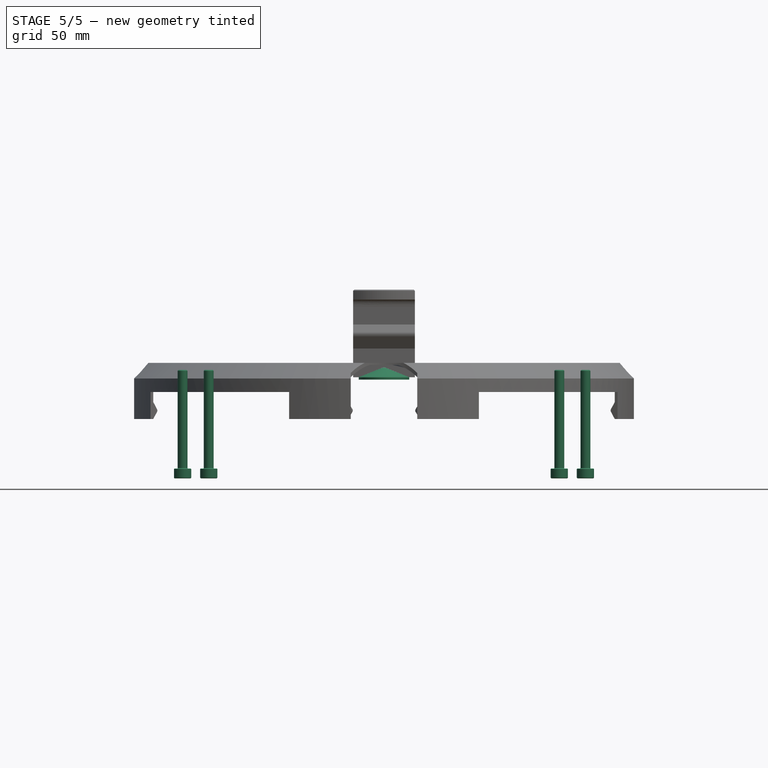
[diagram: stage 5 of 5 — front view after this stage's code; geometry added in this stage tinted green]
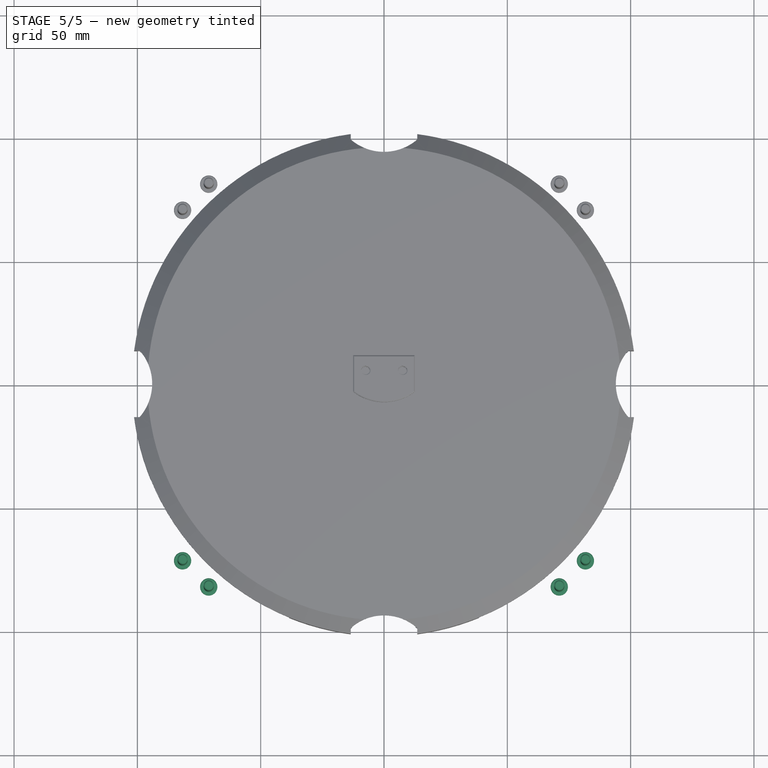
[diagram: stage 5 of 5 — top view after this stage's code; geometry added in this stage tinted green]
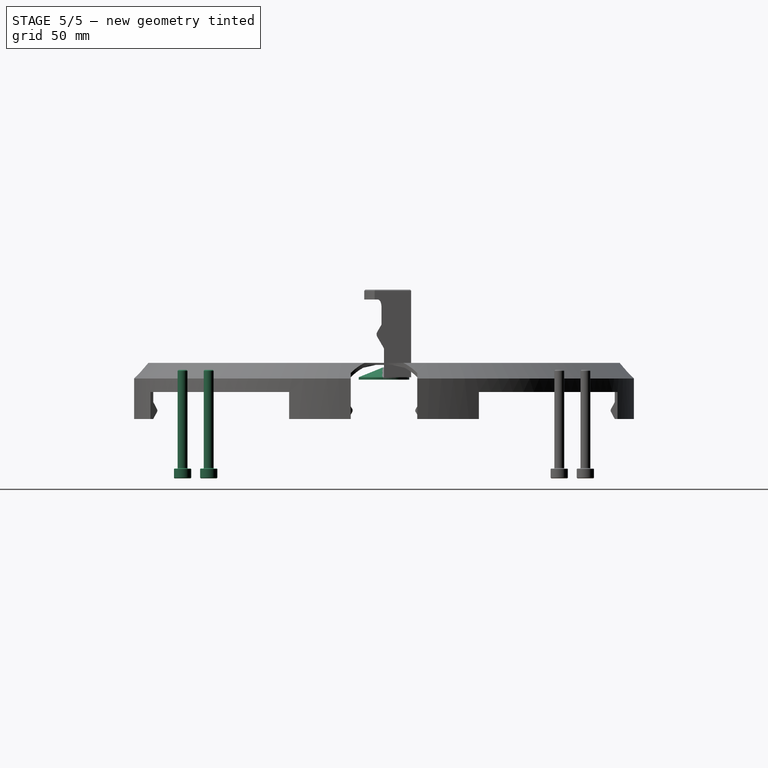
[diagram: stage 5 of 5 — right view after this stage's code; geometry added in this stage tinted green]
FEATURE [Sketcher::SketchObject] Sketch  label="UpperCell_Base_Sketch"
  FullyConstrained = true
  MapMode = 5
  Support = -> [XY_Plane001]
  expr: Constraints[101] = <<Common>>#<<Parameters>>.collslot
  expr: Constraints[126] = <<Common>>#<<Parameters>>.collbolt * 1.1 + <<Common>>#<<Parameters>>.collextra * 2
  expr: Constraints[31] = <<Common>>#<<Parameters>>.rbracepos + <<Common>>#<<Parameters>>.pri_fwidth / 2
  expr: Constraints[35] = <<Common>>#<<Parameters>>.pri_fwidth
  expr: Constraints[50] = <<Common>>#<<Parameters>>.cpointpos + <<Common>>#<<Parameters>>.pri_fwidth / 2
  expr: Constraints[52] = <<Common>>#<<Parameters>>.pri_mdia / 2 + <<Common>>#<<Parameters>>.pri_mpad_z + <<Common>>#<<Parameters>>.clipwidth
  expr: Constraints[59] = <<Common>>#<<Parameters>>.rbracepos - <<Common>>#<<Parameters>>.pri_fwidth / 2
  expr: Constraints[61] = <<Common>>#<<Parameters>>.rbracepos
  expr: Constraints[76] = -<<Common>>#<<Parameters>>.cpointpos
  expr: Constraints[85] = <<Common>>#<<Parameters>>.collbolt * 1.2
  expr: Constraints[88] = <<Common>>#<<Parameters>>.collpos_y
  sketch-geometry (48):
    g0: LineSegment StartX=-79.9031 StartY=-79.9031 StartZ=0 EndX=92 EndY=92 EndZ=0
    g1: LineSegment StartX=79.9031 StartY=-79.9031 StartZ=0 EndX=-92 EndY=92 EndZ=0
    g2: LineSegment StartX=-59.3364 StartY=-41.6587 StartZ=0 EndX=-88.7419 EndY=-71.0642 EndZ=0
    g3: LineSegment StartX=-88.7419 StartY=-71.0642 StartZ=0 EndX=-71.0642 EndY=-88.7419 EndZ=0
    g4: LineSegment StartX=-71.0642 StartY=-88.7419 StartZ=0 EndX=-44.5278 EndY=-62.2055 EndZ=0
    g5: LineSegment StartX=44.5278 StartY=-62.2055 StartZ=0 EndX=71.0642 EndY=-88.7419 EndZ=0
    g6: LineSegment StartX=71.0642 StartY=-88.7419 StartZ=0 EndX=88.7419 EndY=-71.0642 EndZ=0
    g7: LineSegment StartX=88.7419 StartY=-71.0642 StartZ=0 EndX=59.3364 EndY=-41.6587 EndZ=0
    g8: LineSegment StartX=-59.3364 StartY=41.6587 StartZ=0 EndX=-100.839 EndY=83.1612 EndZ=0
    g9: LineSegment StartX=-100.839 StartY=83.1612 StartZ=0 EndX=-83.1612 EndY=100.839 EndZ=0
    g10: LineSegment StartX=-83.1612 StartY=100.839 StartZ=0 EndX=-41.6587 EndY=59.3364 EndZ=0
    g11: LineSegment StartX=41.6587 StartY=59.3364 StartZ=0 EndX=83.1612 EndY=100.839 EndZ=0
    g12: LineSegment StartX=83.1612 StartY=100.839 StartZ=0 EndX=100.839 EndY=83.1612 EndZ=0
    g13: LineSegment StartX=100.839 StartY=83.1612 StartZ=0 EndX=59.3364 EndY=41.6587 EndZ=0
    g14: ArcOfCircle CenterX=0 CenterY=0 CenterZ=0 NormalX=0 NormalY=0 NormalZ=1 AngleXU=0 Radius=72.5 StartAngle=2.52947 EndAngle=3.75371
    g15: ArcOfCircle CenterX=0 CenterY=0 CenterZ=0 NormalX=0 NormalY=0 NormalZ=1 AngleXU=0 Radius=72.5 StartAngle=5.67107 EndAngle=6.8953
    g16: ArcOfCircle CenterX=0 CenterY=0 CenterZ=0 NormalX=0 NormalY=0 NormalZ=1 AngleXU=0 Radius=72.5 StartAngle=0.958678 EndAngle=2.18291
    g17: ArcOfCircle CenterX=-92 CenterY=92 CenterZ=0 NormalX=0 NormalY=0 NormalZ=1 AngleXU=0 Radius=12.5 StartAngle=0.785398 EndAngle=3.92699
    g18: ArcOfCircle CenterX=92 CenterY=92 CenterZ=0 NormalX=0 NormalY=0 NormalZ=1 AngleXU=0 Radius=12.5 StartAngle=5.49779 EndAngle=8.63938
    g19: ArcOfCircle CenterX=0 CenterY=0 CenterZ=0 NormalX=0 NormalY=0 NormalZ=1 AngleXU=0 Radius=76.5 StartAngle=4.09113 EndAngle=5.33365
    g20: Circle CenterX=0 CenterY=0 CenterZ=0 NormalX=0 NormalY=0 NormalZ=1 AngleXU=0 Radius=47.5
    g21: Circle CenterX=0 CenterY=0 CenterZ=0 NormalX=0 NormalY=0 NormalZ=1 AngleXU=0 Radius=60
    g22: ArcOfCircle CenterX=-93.7367 CenterY=92.992 CenterZ=0 NormalX=0 NormalY=0 NormalZ=1 AngleXU=0 Radius=3.6 StartAngle=1.05182 EndAngle=4.19341
    g23: ArcOfCircle CenterX=-90.2633 CenterY=91.008 CenterZ=0 NormalX=0 NormalY=0 NormalZ=1 AngleXU=0 Radius=3.6 StartAngle=4.19341 EndAngle=7.33501
    g24: LineSegment StartX=-95.5222 StartY=89.866 StartZ=0 EndX=-92.0489 EndY=87.882 EndZ=0
    g25: LineSegment StartX=-91.9511 StartY=96.118 StartZ=0 EndX=-88.4778 EndY=94.134 EndZ=0
    g26: ArcOfCircle CenterX=93.7367 CenterY=92.992 CenterZ=0 NormalX=0 NormalY=0 NormalZ=1 AngleXU=0 Radius=3.6 StartAngle=5.23137 EndAngle=8.37296
    g27: ArcOfCircle CenterX=90.2633 CenterY=91.008 CenterZ=0 NormalX=0 NormalY=0 NormalZ=1 AngleXU=0 Radius=3.6 StartAngle=2.08977 EndAngle=5.23137
    g28: LineSegment StartX=91.9511 StartY=96.118 StartZ=0 EndX=88.4778 EndY=94.134 EndZ=0
    g29: LineSegment StartX=95.5222 StartY=89.866 StartZ=0 EndX=92.0489 EndY=87.882 EndZ=0
    g30: LineSegment StartX=0 StartY=-64 StartZ=0 EndX=92 EndY=92 EndZ=0
    g31: LineSegment StartX=-92 StartY=92 StartZ=0 EndX=0 EndY=-64 EndZ=0
    g32: GeomPoint X=0 Y=60 Z=0
    g33: LineSegment StartX=-95.5222 StartY=89.866 StartZ=0 EndX=-88.4778 EndY=94.134 EndZ=0
    g34: LineSegment StartX=95.5222 StartY=89.866 StartZ=0 EndX=88.4778 EndY=94.134 EndZ=0
    g35: ArcOfCircle CenterX=0 CenterY=-66 CenterZ=0 NormalX=0 NormalY=0 NormalZ=1 AngleXU=0 Radius=3.6 StartAngle=3.14159 EndAngle=6.28319
    g36: ArcOfCircle CenterX=0 CenterY=-62 CenterZ=0 NormalX=0 NormalY=0 NormalZ=1 AngleXU=0 Radius=3.6 StartAngle=8e-16 EndAngle=3.14159
    g37: LineSegment StartX=3.6 StartY=-66 StartZ=0 EndX=3.6 EndY=-62 EndZ=0
    g38: LineSegment StartX=-3.6 StartY=-66 StartZ=0 EndX=-3.6 EndY=-62 EndZ=0
    g39: LineSegment StartX=-3.6 StartY=-62 StartZ=0 EndX=3.6 EndY=-66 EndZ=0
    g40: LineSegment StartX=-92 StartY=92 StartZ=0 EndX=92 EndY=92 EndZ=0
    g41: ArcOfCircle CenterX=92 CenterY=92 CenterZ=0 NormalX=0 NormalY=0 NormalZ=1 AngleXU=0 Radius=12.5 StartAngle=3.14159 EndAngle=4.17955
    g42: LineSegment StartX=79.5 StartY=92 StartZ=0 EndX=81.1459 EndY=85.8001 EndZ=0
    g43: LineSegment StartX=85.6502 StartY=81.2329 StartZ=0 EndX=81.1459 EndY=85.8001 EndZ=0
    g44: LineSegment StartX=92 StartY=92 StartZ=0 EndX=0 EndY=39.4493 EndZ=0
    g45: LineSegment StartX=0 StartY=39.4493 StartZ=0 EndX=-92 EndY=92 EndZ=0
    g46: Circle CenterX=-92 CenterY=92 CenterZ=0 NormalX=0 NormalY=0 NormalZ=1 AngleXU=0 Radius=4.35796
    g47: Circle CenterX=92 CenterY=92 CenterZ=0 NormalX=0 NormalY=0 NormalZ=1 AngleXU=0 Radius=4.35796
  constraints (128):
    c: Perpendicular(g0,g1)
    c: Symmetric(g0,g1,g-2)
    c: Symmetric(g0,g1,g-2)
    c: Coincident(g3,g2)
    c: Coincident(g4,g3)
    c: Coincident(g6,g5)
    c: Coincident(g7,g6)
    c: Coincident(g9,g8)
    c: Coincident(g10,g9)
    c: Coincident(g12,g11)
    c: Coincident(g13,g12)
    c: Parallel(g4,g2)
    c: Parallel(g2,g0)
    c: Parallel(g5,g7)
    c: Parallel(g7,g1)
    c: Perpendicular(g0,g3)
    c: Perpendicular(g1,g6)
    c: Parallel(g8,g10)
    c: Parallel(g10,g1)
    c: Parallel(g11,g13)
    c: Parallel(g13,g0)
    c: Perpendicular(g0,g12)
    c: Perpendicular(g1,g9)
    c: Coincident(g14,g2)
    c: Coincident(g14,g8)
    c: Coincident(g15,g7)
    c: Coincident(g15,g13)
    c: Coincident(g16,g10)
    c: Coincident(g16,g11)
    c: Equal(g16,g14)
    c: Equal(g14,g15)
    c: Radius(g16) = 72.5
    c: Equal(g9,g12)
    c: Equal(g12,g6)
    c: Equal(g6,g3)
    c: Distance(g6) = 25
    c: PointOnObject(g0,g12)
    c: PointOnObject(g1,g9)
    c: Coincident(g17,g1)
    c: Coincident(g17,g9)
    c: Coincident(g17,g8)
    c: Coincident(g18,g0)
    c: Coincident(g18,g11)
    c: Coincident(g18,g12)
    c: PointOnObject(g2,g11)
    c: PointOnObject(g7,g10)
    c: PointOnObject(g0,g3)
    c: PointOnObject(g1,g6)
    c: Coincident(g19,g4)
    c: Coincident(g19,g5)
    c: Radius(g19) = 76.5
    c: PointOnObject(g-1,g0)
    c: Distance(g-1,g0) = 113
    c: Distance(g-1,g18) = 130.108
    c: Coincident(g19,g16)
    c: Coincident(g19,g14)
    c: Coincident(g19,g15)
    c: Coincident(g19,g-1)
    c: Coincident(g20,g14)
    c: Radius(g20) = 47.5
    c: Coincident(g21,g14)
    c: Radius(g21) = 60
    c: Tangent(g22,g25) = 1.5708
    c: Tangent(g22,g24) = -1.5708
    c: Tangent(g24,g23) = -1.5708
    c: Tangent(g25,g23) = 1.5708
    c: Equal(g22,g23)
    c: Tangent(g26,g29) = 1.5708
    c: Tangent(g26,g28) = -1.5708
    c: Tangent(g28,g27) = -1.5708
    c: Tangent(g29,g27) = 1.5708
    c: Equal(g26,g27)
    c: PointOnObject(g30,g-2)
    c: Coincident(g30,g18)
    c: Coincident(g31,g17)
    c: Coincident(g31,g30)
    c: DistanceY(g30) = -64
    c: PointOnObject(g32,g21)
    c: PointOnObject(g32,g-2)
    c: Coincident(g33,g22)
    c: Coincident(g33,g23)
    c: Coincident(g34,g26)
    c: Coincident(g34,g27)
    c: Equal(g28,g25)
    c: Equal(g22,g26)
    c: Diameter(g22) = 7.2
    c: PointOnObject(g18,g34)
    c: PointOnObject(g17,g33)
    c: DistanceY(g17) = 92
    c: Tangent(g35,g38) = 1.5708
    c: Tangent(g35,g37) = -1.5708
    c: Tangent(g37,g36) = -1.5708
    c: Tangent(g38,g36) = 1.5708
    c: Vertical(g37)
    c: Equal(g35,g36)
    c: PointOnObject(g35,g-2)
    c: Equal(g37,g29)
    c: Equal(g36,g27)
    c: Coincident(g39,g36)
    c: Coincident(g39,g35)
    c: PointOnObject(g30,g39)
    c: DistanceY(g38,g38) = 4
    c: Coincident(g40,g17)
    c: Coincident(g40,g18)
    c: Coincident(g41,g18)
    c: PointOnObject(g41,g40)
    c: PointOnObject(g41,g30)
    c: PointOnObject(g41,g18)
    c: Coincident(g42,g41)
    c: PointOnObject(g42,g41)
    c: Coincident(g43,g41)
    c: Coincident(g43,g42)
    c: Coincident(g44,g18)
    c: PointOnObject(g44,g-2)
    c: Coincident(g45,g44)
    c: Coincident(g45,g17)
    c: Equal(g42,g43)
    c: PointOnObject(g42,g44)
    c: PointOnObject(g27,g44)
    c: PointOnObject(g26,g44)
    c: PointOnObject(g23,g45)
    c: PointOnObject(g22,g45)
    c: Angle(g45,g40) = 0.518976
    c: Angle(g40,g30) = 1.03795
    c: Coincident(g46,g1)
    c: Coincident(g47,g0)
    c: Diameter(g47) = 8.71592
    c: Equal(g47,g46)
FEATURE [Sketcher::SketchObject] Sketch011  label="UpperCell_Sketch_cp"
  FullyConstrained = true
  MapMode = 5
  Support = -> [XY_Plane001]
  expr: Constraints[1] = <<Common>>#<<Parameters>>.pri_fwidth
  expr: Constraints[34] = <<Common>>#<<Parameters>>.pri_mdia / 2 + <<Common>>#<<Parameters>>.pri_mpad_z + <<Common>>#<<Parameters>>.clipbolt * 2
  expr: Constraints[3] = <<Common>>#<<Parameters>>.collbolt
  sketch-geometry (22):
    g0: LineSegment StartX=-69.65 StartY=87.3277 StartZ=0 EndX=0 EndY=17.6777 EndZ=0
    g1: LineSegment StartX=0 StartY=17.6777 StartZ=0 EndX=69.65 EndY=87.3277 EndZ=0
    g2: LineSegment StartX=87.3277 StartY=69.65 StartZ=0 EndX=17.6777 EndY=0 EndZ=0
    g3: LineSegment StartX=17.6777 StartY=0 StartZ=0 EndX=87.3277 EndY=-69.65 EndZ=0
    g4: LineSegment StartX=69.65 StartY=-87.3277 StartZ=0 EndX=0 EndY=-17.6777 EndZ=0
    g5: LineSegment StartX=0 StartY=-17.6777 StartZ=0 EndX=-69.65 EndY=-87.3277 EndZ=0
    g6: LineSegment StartX=-87.3277 StartY=-69.65 StartZ=0 EndX=-17.6777 EndY=0 EndZ=0
    g7: LineSegment StartX=-17.6777 StartY=0 StartZ=0 EndX=-87.3277 EndY=69.65 EndZ=0
    g8: LineSegment StartX=-17.6777 StartY=0 StartZ=0 EndX=0 EndY=-17.6777 EndZ=0
    g9: Circle CenterX=0 CenterY=0 CenterZ=0 NormalX=0 NormalY=0 NormalZ=1 AngleXU=0 Radius=3
    g10: LineSegment StartX=-69.65 StartY=87.3277 StartZ=0 EndX=-87.3277 EndY=69.65 EndZ=0
    g11: LineSegment StartX=69.65 StartY=87.3277 StartZ=0 EndX=87.3277 EndY=69.65 EndZ=0
    g12: LineSegment StartX=-87.3277 StartY=-69.65 StartZ=0 EndX=-69.65 EndY=-87.3277 EndZ=0
    g13: LineSegment StartX=69.65 StartY=-87.3277 StartZ=0 EndX=87.3277 EndY=-69.65 EndZ=0
    g14: LineSegment StartX=0 StartY=-17.6777 StartZ=0 EndX=17.6777 EndY=0 EndZ=0
    g15: Circle CenterX=0 CenterY=0 CenterZ=0 NormalX=0 NormalY=0 NormalZ=1 AngleXU=0 Radius=111
    g16: ArcOfCircle CenterX=-78.4889 CenterY=-78.4889 CenterZ=0 NormalX=0 NormalY=0 NormalZ=1 AngleXU=0 Radius=12.5 StartAngle=2.35619 EndAngle=5.49779
    g17: ArcOfCircle CenterX=78.4889 CenterY=-78.4889 CenterZ=0 NormalX=0 NormalY=0 NormalZ=1 AngleXU=0 Radius=12.5 StartAngle=3.92699 EndAngle=7.06858
    g18: ArcOfCircle CenterX=-78.4889 CenterY=78.4889 CenterZ=0 NormalX=0 NormalY=0 NormalZ=1 AngleXU=0 Radius=12.5 StartAngle=0.785398 EndAngle=3.92699
    g19: ArcOfCircle CenterX=78.4889 CenterY=78.4889 CenterZ=0 NormalX=0 NormalY=0 NormalZ=1 AngleXU=0 Radius=12.5 StartAngle=5.49779 EndAngle=8.63938
    g20: LineSegment StartX=78.4889 StartY=78.4889 StartZ=0 EndX=-78.4889 EndY=-78.4889 EndZ=0
    g21: LineSegment StartX=-78.4889 StartY=78.4889 StartZ=0 EndX=78.4889 EndY=-78.4889 EndZ=0
  constraints (58):
    c: Coincident(g1,g0)
    c: Distance(g2,g4) = 25
    c: Coincident(g9,g-1)
    c: Diameter(g9) = 6
    c: Coincident(g10,g0)
    c: Coincident(g10,g7)
    c: Coincident(g13,g4)
    c: Coincident(g13,g3)
    c: Coincident(g11,g2)
    c: Coincident(g1,g11)
    c: Coincident(g6,g12)
    c: Coincident(g12,g5)
    c: Parallel(g5,g13)
    c: Parallel(g13,g10)
    c: Parallel(g10,g1)
    c: Parallel(g1,g2)
    c: Coincident(g6,g7)
    c: PointOnObject(g6,g-1)
    c: PointOnObject(g0,g-2)
    c: Coincident(g4,g5)
    c: Coincident(g4,g8)
    c: PointOnObject(g4,g-2)
    c: Coincident(g2,g3)
    c: PointOnObject(g2,g-1)
    c: Coincident(g8,g6)
    c: Parallel(g11,g0)
    c: Parallel(g0,g7)
    c: Parallel(g8,g12)
    c: Equal(g6,g1)
    c: Equal(g3,g0)
    c: Symmetric(g16,g17,g-2)
    c: Coincident(g14,g4)
    c: Coincident(g14,g2)
    c: Symmetric(g7,g6,g-1)
    c: Radius(g15) = 111
    c: PointOnObject(g16,g15)
    c: Coincident(g15,g9)
    c: Coincident(g16,g6)
    c: Coincident(g16,g5)
    c: Coincident(g17,g4)
    c: Coincident(g17,g3)
    c: PointOnObject(g18,g10)
    c: Coincident(g18,g7)
    c: Coincident(g18,g0)
    c: PointOnObject(g19,g11)
    c: Coincident(g19,g1)
    c: Coincident(g19,g2)
    c: Coincident(g20,g19)
    c: Coincident(g20,g16)
    c: Coincident(g21,g18)
    c: Coincident(g21,g17)
    c: PointOnObject(g9,g20)
    c: PointOnObject(g9,g21)
    c: Perpendicular(g21,g20)
    c: Parallel(g8,g21)
    c: Parallel(g21,g7)
    c: Parallel(g7,g4)
    c: PointOnObject(g16,g12)
FEATURE [PartDesign::Plane] DatumPlane004  label="UpperCell_DatumPlane_Top"
  AttachmentOffset = pos=(0,0,6) rot=(0,0,1;0rad)
  Length = 249.031
  MapMode = 5
  Placement = pos=(0,0,6) rot=(0,0,1;0rad)
  ResizeMode = 0
  Support = -> [XY_Plane001]
  Width = 232.245
  expr: .AttachmentOffset.Base.z = <<Common>>#<<Parameters>>.pri_uthick
FEATURE [Sketcher::SketchObject] Sketch012  label="UpperCell_CollHoles_Sketch"
  FullyConstrained = true
  MapMode = 5
  Placement = pos=(0,0,6) rot=(0,0,1;0rad)
  Support = -> [DatumPlane004]
  expr: Constraints[10] = <<Common>>#<<Parameters>>.collslot + 1
  expr: Constraints[1] = <<Common>>#<<Parameters>>.rbracepos + <<Common>>#<<Parameters>>.collslot
  expr: Constraints[9] = <<Common>>#<<Parameters>>.collbolt * 2 + 1
  sketch-geometry (6):
    g0: GeomPoint X=0 Y=-64 Z=0
    g1: ArcOfCircle CenterX=0 CenterY=-61.5 CenterZ=0 NormalX=0 NormalY=0 NormalZ=1 AngleXU=0 Radius=6.5 StartAngle=2e-16 EndAngle=3.14159
    g2: ArcOfCircle CenterX=0 CenterY=-66.5 CenterZ=0 NormalX=0 NormalY=0 NormalZ=1 AngleXU=0 Radius=6.5 StartAngle=3.14159 EndAngle=6.28319
    g3: LineSegment StartX=-6.5 StartY=-61.5 StartZ=0 EndX=-6.5 EndY=-66.5 EndZ=0
    g4: LineSegment StartX=6.5 StartY=-61.5 StartZ=0 EndX=6.5 EndY=-66.5 EndZ=0
    g5: LineSegment StartX=-6.5 StartY=-61.5 StartZ=0 EndX=6.5 EndY=-66.5 EndZ=0
  constraints (14):
    c: PointOnObject(g0,g-2)
    c: DistanceY(g0,g-1) = 64
    c: Tangent(g1,g4) = 1.5708
    c: Tangent(g1,g3) = -1.5708
    c: Tangent(g3,g2) = -1.5708
    c: Tangent(g4,g2) = 1.5708
    c: Vertical(g3)
    c: Equal(g1,g2)
    c: PointOnObject(g1,g-2)
    c: Diameter(g1) = 13
    c: DistanceY(g4,g4) = 5
    c: Coincident(g5,g1)
    c: Coincident(g5,g2)
    c: PointOnObject(g0,g5)
FEATURE [Sketcher::SketchObject] Sketch017  label="UpperCell_ClipHoles_Sketch"
  FullyConstrained = true
  MapMode = 5
  Placement = pos=(0,0,6) rot=(0,0,1;0rad)
  Support = -> [DatumPlane004]
  expr: Constraints[1] = <<Common>>#<<Parameters>>.pri_mdia / 2 + <<Common>>#<<Parameters>>.pri_mpad_z + <<Common>>#<<Parameters>>.clipwidth / 2 - <<Common>>#<<Parameters>>.clipslot / 2
  expr: Constraints[28] = <<Common>>#<<Parameters>>.clipbolt * 1.1
  expr: Constraints[47] = <<Common>>#<<Parameters>>.clipslot
  expr: Constraints[58] = <<Common>>#<<Parameters>>.clipslot / 2
  expr: Constraints[9] = <<Common>>#<<Parameters>>.pri_fwidth - <<Common>>#<<Parameters>>.clipbolt * 2.5
  sketch-geometry (28):
    g0: Circle CenterX=0 CenterY=0 CenterZ=0 NormalX=0 NormalY=0 NormalZ=1 AngleXU=0 Radius=105.5
    g1: LineSegment StartX=-76.3675 StartY=-76.3675 StartZ=0 EndX=74.5998 EndY=74.5998 EndZ=0
    g2: LineSegment StartX=-74.5998 StartY=74.5998 StartZ=0 EndX=76.3675 EndY=-76.3675 EndZ=0
    g3: LineSegment StartX=-81.6708 StartY=-71.0642 StartZ=0 EndX=-71.0642 EndY=-81.6708 EndZ=0
    g4: LineSegment StartX=71.0642 StartY=-81.6708 StartZ=0 EndX=81.6708 EndY=-71.0642 EndZ=0
    g5: LineSegment StartX=69.2965 StartY=79.9031 StartZ=0 EndX=79.9031 EndY=69.2965 EndZ=0
    g6: LineSegment StartX=-69.2965 StartY=79.9031 StartZ=0 EndX=-79.9031 EndY=69.2965 EndZ=0
    g7: ArcOfCircle CenterX=72.832 CenterY=83.4386 CenterZ=0 NormalX=0 NormalY=0 NormalZ=1 AngleXU=0 Radius=2.2 StartAngle=5.49779 EndAngle=8.63938
    g8: ArcOfCircle CenterX=69.2965 CenterY=79.9031 CenterZ=0 NormalX=0 NormalY=0 NormalZ=1 AngleXU=0 Radius=2.2 StartAngle=2.35619 EndAngle=5.49779
    g9: LineSegment StartX=71.2764 StartY=84.9942 StartZ=0 EndX=67.7408 EndY=81.4587 EndZ=0
    g10: LineSegment StartX=74.3876 StartY=81.883 StartZ=0 EndX=70.8521 EndY=78.3474 EndZ=0
    g11: ArcOfCircle CenterX=83.4386 CenterY=72.832 CenterZ=0 NormalX=0 NormalY=0 NormalZ=1 AngleXU=0 Radius=2.2 StartAngle=5.49779 EndAngle=8.63938
    g12: ArcOfCircle CenterX=79.9031 CenterY=69.2965 CenterZ=0 NormalX=0 NormalY=0 NormalZ=1 AngleXU=0 Radius=2.2 StartAngle=2.35619 EndAngle=5.49779
    g13: LineSegment StartX=81.883 StartY=74.3876 StartZ=0 EndX=78.3474 EndY=70.8521 EndZ=0
    g14: LineSegment StartX=84.9942 StartY=71.2764 StartZ=0 EndX=81.4587 EndY=67.7408 EndZ=0
    g15: ArcOfCircle CenterX=-72.832 CenterY=83.4386 CenterZ=0 NormalX=0 NormalY=0 NormalZ=1 AngleXU=0 Radius=2.2 StartAngle=0.785398 EndAngle=3.92699
    g16: ArcOfCircle CenterX=-69.2965 CenterY=79.9031 CenterZ=0 NormalX=0 NormalY=0 NormalZ=1 AngleXU=0 Radius=2.2 StartAngle=3.92699 EndAngle=7.06858
    g17: LineSegment StartX=-74.3876 StartY=81.883 StartZ=0 EndX=-70.8521 EndY=78.3474 EndZ=0
    g18: LineSegment StartX=-71.2764 StartY=84.9942 StartZ=0 EndX=-67.7408 EndY=81.4587 EndZ=0
    g19: ArcOfCircle CenterX=-83.4386 CenterY=72.832 CenterZ=0 NormalX=0 NormalY=0 NormalZ=1 AngleXU=0 Radius=2.2 StartAngle=0.785398 EndAngle=3.92699
    g20: ArcOfCircle CenterX=-79.9031 CenterY=69.2965 CenterZ=0 NormalX=0 NormalY=0 NormalZ=1 AngleXU=0 Radius=2.2 StartAngle=3.92699 EndAngle=7.06858
    g21: LineSegment StartX=-84.9942 StartY=71.2764 StartZ=0 EndX=-81.4587 EndY=67.7408 EndZ=0
    g22: LineSegment StartX=-81.883 StartY=74.3876 StartZ=0 EndX=-78.3474 EndY=70.8521 EndZ=0
    g23: GeomPoint X=-74.5998 Y=-74.5998 Z=0
    g24: Circle CenterX=81.6708 CenterY=-71.0642 CenterZ=0 NormalX=0 NormalY=0 NormalZ=1 AngleXU=0 Radius=2.2
    g25: Circle CenterX=71.0642 CenterY=-81.6708 CenterZ=0 NormalX=0 NormalY=0 NormalZ=1 AngleXU=0 Radius=2.2
    g26: Circle CenterX=-71.0642 CenterY=-81.6708 CenterZ=0 NormalX=0 NormalY=0 NormalZ=1 AngleXU=0 Radius=2.2
    g27: Circle CenterX=-81.6708 CenterY=-71.0642 CenterZ=0 NormalX=0 NormalY=0 NormalZ=1 AngleXU=0 Radius=2.2
  constraints (67):
    c: Coincident(g0,g-1)
    c: Radius(g0) = 105.5
    c: PointOnObject(g1,g0)
    c: PointOnObject(g2,g0)
    c: PointOnObject(g-1,g1)
    c: PointOnObject(g-1,g2)
    c: Perpendicular(g2,g1)
    c: Symmetric(g1,g2,g-2)
    c: Symmetric(g3,g3,g1)
    c: Distance(g3) = 15
    c: Symmetric(g4,g4,g2)
    c: Symmetric(g6,g6,g2)
    c: Symmetric(g5,g5,g1)
    c: PointOnObject(g1,g5)
    c: PointOnObject(g2,g6)
    c: Equal(g6,g5)
    c: Equal(g5,g4)
    c: Equal(g4,g3)
    c: Tangent(g7,g10) = 1.5708
    c: Tangent(g7,g9) = -1.5708
    c: Tangent(g9,g8) = -1.5708
    c: Tangent(g10,g8) = 1.5708
    c: Equal(g7,g8)
    c: Tangent(g11,g14) = 1.5708
    c: Tangent(g11,g13) = -1.5708
    c: Tangent(g13,g12) = -1.5708
    c: Tangent(g14,g12) = 1.5708
    c: Equal(g11,g12)
    c: Diameter(g7) = 4.4
    c: Equal(g11,g7)
    c: Equal(g14,g10)
    c: Tangent(g15,g18) = 1.5708
    c: Tangent(g15,g17) = -1.5708
    c: Tangent(g17,g16) = -1.5708
    c: Tangent(g18,g16) = 1.5708
    c: Equal(g15,g16)
    c: Tangent(g19,g22) = 1.5708
    c: Tangent(g19,g21) = -1.5708
    c: Tangent(g21,g20) = -1.5708
    c: Tangent(g22,g20) = 1.5708
    c: Equal(g19,g20)
    c: Equal(g7,g15)
    c: Equal(g15,g19)
    c: Equal(g10,g17)
    c: Equal(g21,g17)
    c: Parallel(g9,g13)
    c: Parallel(g13,g1)
    c: Distance(g10) = 5
    c: Coincident(g8,g5)
    c: Coincident(g12,g5)
    c: Parallel(g17,g21)
    c: Parallel(g21,g2)
    c: Coincident(g16,g6)
    c: Coincident(g20,g6)
    c: PointOnObject(g23,g0)
    c: PointOnObject(g2,g4)
    c: PointOnObject(g1,g3)
    c: PointOnObject(g23,g1)
    c: Distance(g1,g23) = 2.5
    c: Coincident(g24,g4)
    c: Coincident(g25,g4)
    c: Coincident(g26,g3)
    c: Coincident(g27,g3)
    c: Equal(g27,g26)
    c: Equal(g26,g25)
    c: Equal(g25,g24)
    c: Equal(g24,g7)
FEATURE [Sketcher::SketchObject] Sketch024  label="UpperCell_MountHoles_Sketch"
  FullyConstrained = true
  MapMode = 5
  Placement = pos=(0,0,6) rot=(0,0,1;0rad)
  Support = -> [DatumPlane004]
  expr: Constraints[1] = <<Common>>#<<Parameters>>.rbracepos
  expr: Constraints[8] = <<Common>>#<<Parameters>>.pri_fwidth - 4
  sketch-geometry (6):
    g0: Circle CenterX=0 CenterY=0 CenterZ=0 NormalX=0 NormalY=0 NormalZ=1 AngleXU=0 Radius=60
    g1: LineSegment StartX=-51.9615 StartY=-30 StartZ=0 EndX=0 EndY=0 EndZ=0
    g2: LineSegment StartX=0 StartY=0 StartZ=0 EndX=51.9615 EndY=-30 EndZ=0
    g3: Circle CenterX=0 CenterY=60 CenterZ=0 NormalX=0 NormalY=0 NormalZ=1 AngleXU=0 Radius=10.5
    g4: Circle CenterX=-51.9615 CenterY=-30 CenterZ=0 NormalX=0 NormalY=0 NormalZ=1 AngleXU=0 Radius=10.5
    g5: Circle CenterX=51.9615 CenterY=-30 CenterZ=0 NormalX=0 NormalY=0 NormalZ=1 AngleXU=0 Radius=10.5
  constraints (14):
    c: Coincident(g0,g-1)
    c: Radius(g0) = 60
    c: Coincident(g1,g-1)
    c: Coincident(g2,g-1)
    c: Angle(g1,g2) = 2.0944
    c: PointOnObject(g2,g0)
    c: Symmetric(g1,g2,g-2)
    c: PointOnObject(g3,g-2)
    c: Diameter(g3) = 21
    c: PointOnObject(g3,g0)
    c: Coincident(g4,g1)
    c: Coincident(g5,g2)
    c: Equal(g5,g4)
    c: Equal(g4,g3)
FEATURE [Sketcher::SketchObject] Sketch026  label="LowerPad_Profile_Sketch"
  FullyConstrained = true
  MapMode = 5
  Placement = pos=(0,0,0) rot=(1,0,0;1.5708rad)
  Support = -> [XZ_Plane006]
  expr: Constraints[13] = <<Common>>#<<Parameters>>.pri_mpad_r + 1
  expr: Constraints[1] = <<Common>>#<<Parameters>>.pri_fwidth / 2 - 2.25
  sketch-geometry (5):
    g0: LineSegment StartX=1e-16 StartY=4 StartZ=0 EndX=1e-16 EndY=-1 EndZ=0
    g1: LineSegment StartX=1e-16 StartY=-1 StartZ=0 EndX=10.25 EndY=-1 EndZ=0
    g2: LineSegment StartX=10.25 StartY=-1 StartZ=0 EndX=10.25 EndY=0 EndZ=0
    g3: LineSegment StartX=10.25 StartY=0 StartZ=0 EndX=0.751862 EndY=3.8533 EndZ=0
    g4: ArcOfCircle CenterX=0 CenterY=2 CenterZ=0 NormalX=0 NormalY=0 NormalZ=1 AngleXU=0 Radius=2 StartAngle=1.18539 EndAngle=1.5708
  constraints (15):
    c: Vertical(g0)
    c: DistanceX(g1,g1) = 10.25
    c: Coincident(g2,g1)
    c: Vertical(g2)
    c: Coincident(g3,g2)
    c: PointOnObject(g4,g0)
    c: Coincident(g4,g0)
    c: Diameter(g4) = 4
    c: Tangent(g4,g3) = -1.5708
    c: Horizontal(g1)
    c: Coincident(g0,g1)
    c: PointOnObject(g0,g-2)
    c: DistanceY(g2,g2) = 1
    c: DistanceY(g0,g0) = 5
    c: PointOnObject(g2,g-1)
FEATURE [PartDesign::Revolution] Revolution  label="LowerPad_Revolution"
  Angle = 360
  Axis = (0,-2e-16,1)
  Base = (0,0,0)
  Placement = pos=(0,0,0) rot=(1,0,0;1.5708rad)
  Profile = -> Sketch026
  ReferenceAxis = -> Sketch026 [V_Axis]
  Reversed = true
FEATURE [PartDesign::CoordinateSystem] LCS_Origin
  AttacherType = Attacher::AttachEngine3D
  MapMode = 2
  Support = -> [X_Axis035]
FEATURE [App::DocumentObjectGroup] Constraints
FEATURE [App::FeaturePython] Variables  # WARN: FeaturePython — macro-defined, semantics opaque (R4)
  Type = App::PropertyContainer
FEATURE [App::DocumentObjectGroup] Configurations
FEATURE [App::Link] PrimaryMirror  label="PrimaryMirror001"
  AttachedBy = #Local_CS
  AttachedTo = Parent Assembly#LCS_Origin
  LinkedObject = -> Body014
  SolverId = Asm4EE
  expr: Placement = LCS_Origin.Placement * AttachmentOffset * Local_CS.Placement ^ -1
FEATURE [App::Link] UpperCell  label="UpperCell001"
  AttachedBy = #Local_CS005
  AttachedTo = PrimaryMirror#Local_CS001
  AttachmentOffset = pos=(0,0,0) rot=(0,0,1;1.5708rad)
  LinkPlacement = pos=(0,0,-37) rot=(0,0,1;0rad)
  LinkedObject = -> Body
  Placement = pos=(0,0,-37) rot=(0,0,1;0rad)
  SolverId = Asm4EE
  expr: Placement = PrimaryMirror.Placement * Local_CS001.Placement * AttachmentOffset * Local_CS005.Placement ^ -1
FEATURE [App::Link] LowerPad_A
  AttachedBy = #Local_CS002
  AttachedTo = UpperCell#Local_CS006
  LinkPlacement = pos=(0,60,-31) rot=(0,0,-1;1.5708rad)
  LinkedObject = -> Body002
  Placement = pos=(0,60,-31) rot=(0,0,-1;1.5708rad)
  SolverId = Asm4EE
  expr: Placement = UpperCell.Placement * Local_CS006.Placement * AttachmentOffset * Local_CS002.Placement ^ -1
FEATURE [App::Link] LowerPad_FS
  AttachedBy = #Local_CS002
  AttachedTo = UpperCell#Local_CS008
  LinkPlacement = pos=(-51.9615,-30,-31) rot=(0,0,1;0.523599rad)
  LinkedObject = -> Body002
  Placement = pos=(-51.9615,-30,-31) rot=(0,0,1;0.523599rad)
  SolverId = Asm4EE
  expr: Placement = UpperCell.Placement * Local_CS008.Placement * AttachmentOffset * Local_CS002.Placement ^ -1
FEATURE [App::Link] LowerPad_FP
  AttachedBy = #Local_CS002
  AttachedTo = UpperCell#Local_CS007
  LinkPlacement = pos=(51.9615,-30,-31) rot=(0,0,-1;3.66519rad)
  LinkedObject = -> Body002
  Placement = pos=(51.9615,-30,-31) rot=(0,0,-1;3.66519rad)
  SolverId = Asm4EE
  expr: Placement = UpperCell.Placement * Local_CS007.Placement * AttachmentOffset * Local_CS002.Placement ^ -1
FEATURE [App::Link] MirrorClip_AP
  AttachedBy = #Local_CS086
  AttachedTo = UpperCell#Local_CS081
  LinkPlacement = pos=(72.832,72.832,-31) rot=(0,0,-1;0.785398rad)
  LinkedObject = -> Body022
  Placement = pos=(72.832,72.832,-31) rot=(0,0,-1;0.785398rad)
  SolverId = Asm4EE
  expr: Placement = UpperCell.Placement * Local_CS081.Placement * AttachmentOffset * Local_CS086.Placement ^ -1
FEATURE [App::Link] MirrorClip_AS
  AttachedBy = #Local_CS086
  AttachedTo = UpperCell#Local_CS080
  LinkPlacement = pos=(-72.832,72.832,-31) rot=(0,0,-1;5.49779rad)
  LinkedObject = -> Body022
  Placement = pos=(-72.832,72.832,-31) rot=(0,0,-1;5.49779rad)
  SolverId = Asm4EE
  expr: Placement = UpperCell.Placement * Local_CS080.Placement * AttachmentOffset * Local_CS086.Placement ^ -1
FEATURE [App::Link] MirrorClip_FP
  AttachedBy = #Local_CS086
  AttachedTo = UpperCell#Local_CS082
  LinkPlacement = pos=(72.832,-72.832,-31) rot=(0,0,-1;2.35619rad)
  LinkedObject = -> Body022
  Placement = pos=(72.832,-72.832,-31) rot=(0,0,-1;2.35619rad)
  SolverId = Asm4EE
  expr: Placement = UpperCell.Placement * Local_CS082.Placement * AttachmentOffset * Local_CS086.Placement ^ -1
FEATURE [App::Link] MirrorClip_FS
  AttachedBy = #Local_CS086
  AttachedTo = UpperCell#Local_CS083
  LinkPlacement = pos=(-72.832,-72.832,-31) rot=(0,0,-1;3.92699rad)
  LinkedObject = -> Body022
  Placement = pos=(-72.832,-72.832,-31) rot=(0,0,-1;3.92699rad)
  SolverId = Asm4EE
  expr: Placement = UpperCell.Placement * Local_CS083.Placement * AttachmentOffset * Local_CS086.Placement ^ -1
FEATURE [Part::FeaturePython] Screw  label="M4x40-Screw"  # Fasteners workbench fastener (typed FeaturePython)
  AttachedBy = Origin
  AttachedTo = UpperCell#Local_CS114
  Placement = pos=(-81.6708,-71.0642,-37) rot=(0.382683,0.92388,0;3.14159rad)
  SolverId = Asm4EE
  diameter = 5
  invert = false
  leftHanded = false
  length = 10
  lengthCustom = 40
  matchOuter = false
  offset = 0
  thread = false
  type = 45
  expr: Placement = UpperCell.Placement * Local_CS114.Placement * AttachmentOffset
FEATURE [Part::FeaturePython] Screw001  label="M4x40-Screw090"  # Fasteners workbench fastener (typed FeaturePython)
  AttachedBy = Origin
  AttachedTo = UpperCell#Local_CS115
  Placement = pos=(-71.0642,-81.6708,-37) rot=(0.382683,0.92388,0;3.14159rad)
  SolverId = Asm4EE
  diameter = 5
  invert = false
  leftHanded = false
  length = 10
  lengthCustom = 40
  matchOuter = false
  offset = 0
  thread = false
  type = 45
  expr: Placement = UpperCell.Placement * Local_CS115.Placement * AttachmentOffset
FEATURE [Part::FeaturePython] Screw002  label="M4x40-Screw091"  # Fasteners workbench fastener (typed FeaturePython)
  AttachedBy = Origin
  AttachedTo = UpperCell#Local_CS116
  Placement = pos=(71.0642,-81.6708,-37) rot=(-0.382683,0.92388,0;3.14159rad)
  SolverId = Asm4EE
  diameter = 5
  invert = false
  leftHanded = false
  length = 10
  lengthCustom = 40
  matchOuter = false
  offset = 0
  thread = false
  type = 45
  expr: Placement = UpperCell.Placement * Local_CS116.Placement * AttachmentOffset
FEATURE [Part::FeaturePython] Screw003  label="M4x40-Screw092"  # Fasteners workbench fastener (typed FeaturePython)
  AttachedBy = Origin
  AttachedTo = UpperCell#Local_CS117
  Placement = pos=(81.6708,-71.0642,-37) rot=(-0.382683,0.92388,0;3.14159rad)
  SolverId = Asm4EE
  diameter = 5
  invert = false
  leftHanded = false
  length = 10
  lengthCustom = 40
  matchOuter = false
  offset = 0
  thread = false
  type = 45
  expr: Placement = UpperCell.Placement * Local_CS117.Placement * AttachmentOffset
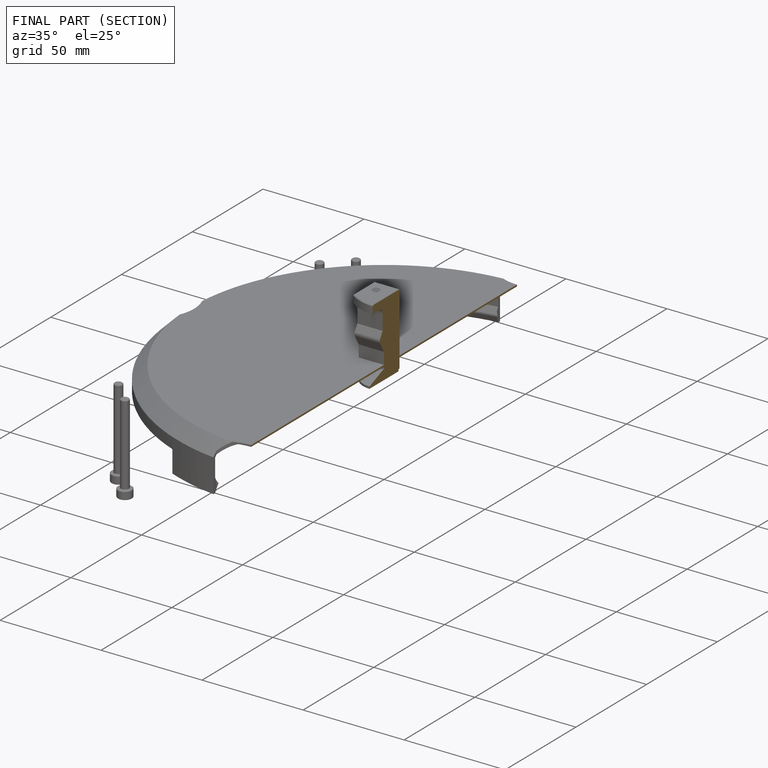
[diagram: finished part — half-section view (interior)]
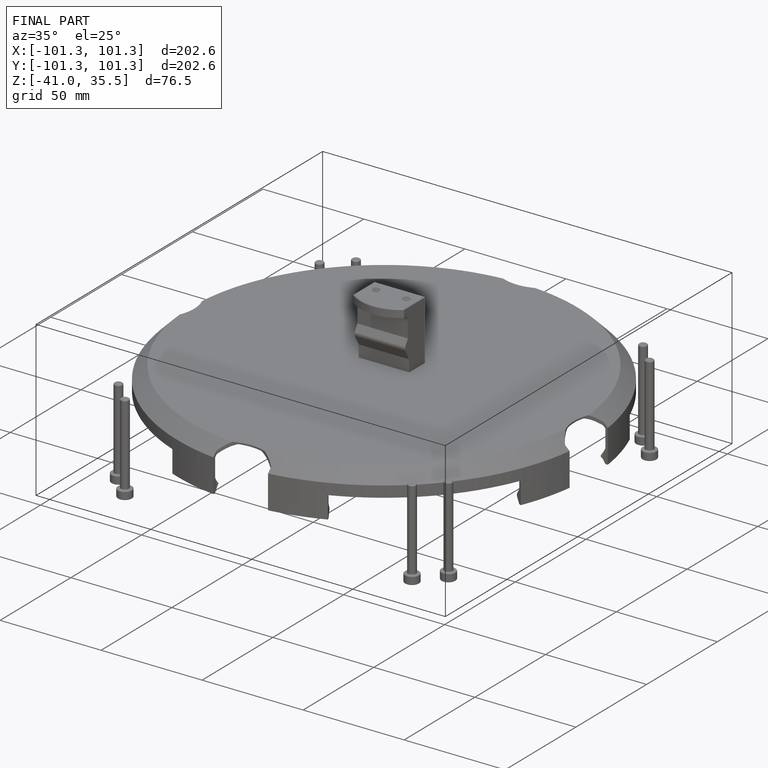
[diagram: finished part — iso view with bounding-box wireframe]
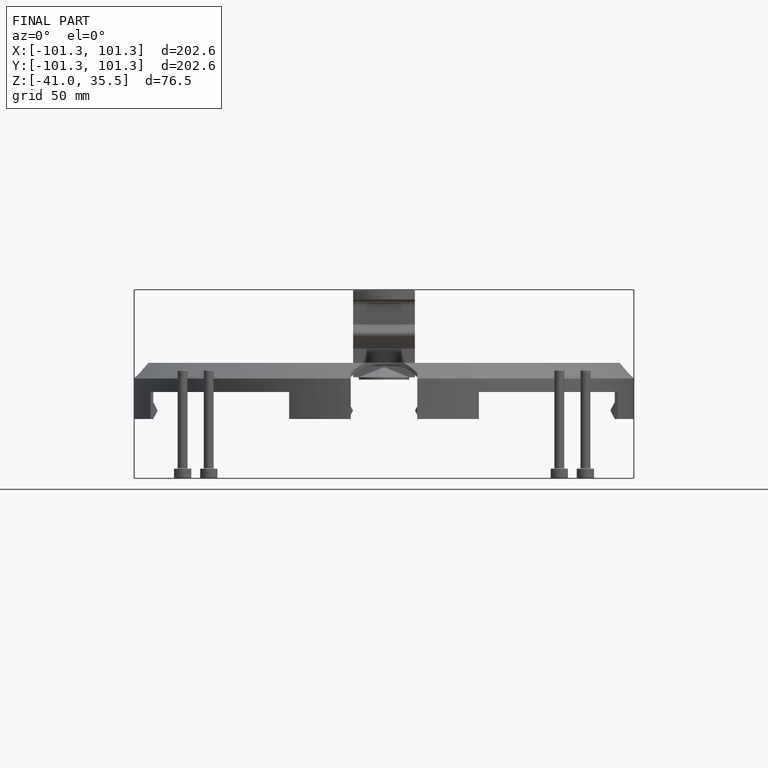
[diagram: finished part — front view with bounding-box wireframe]
